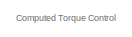
[diagram: root canvas - part 1/4, top left region]
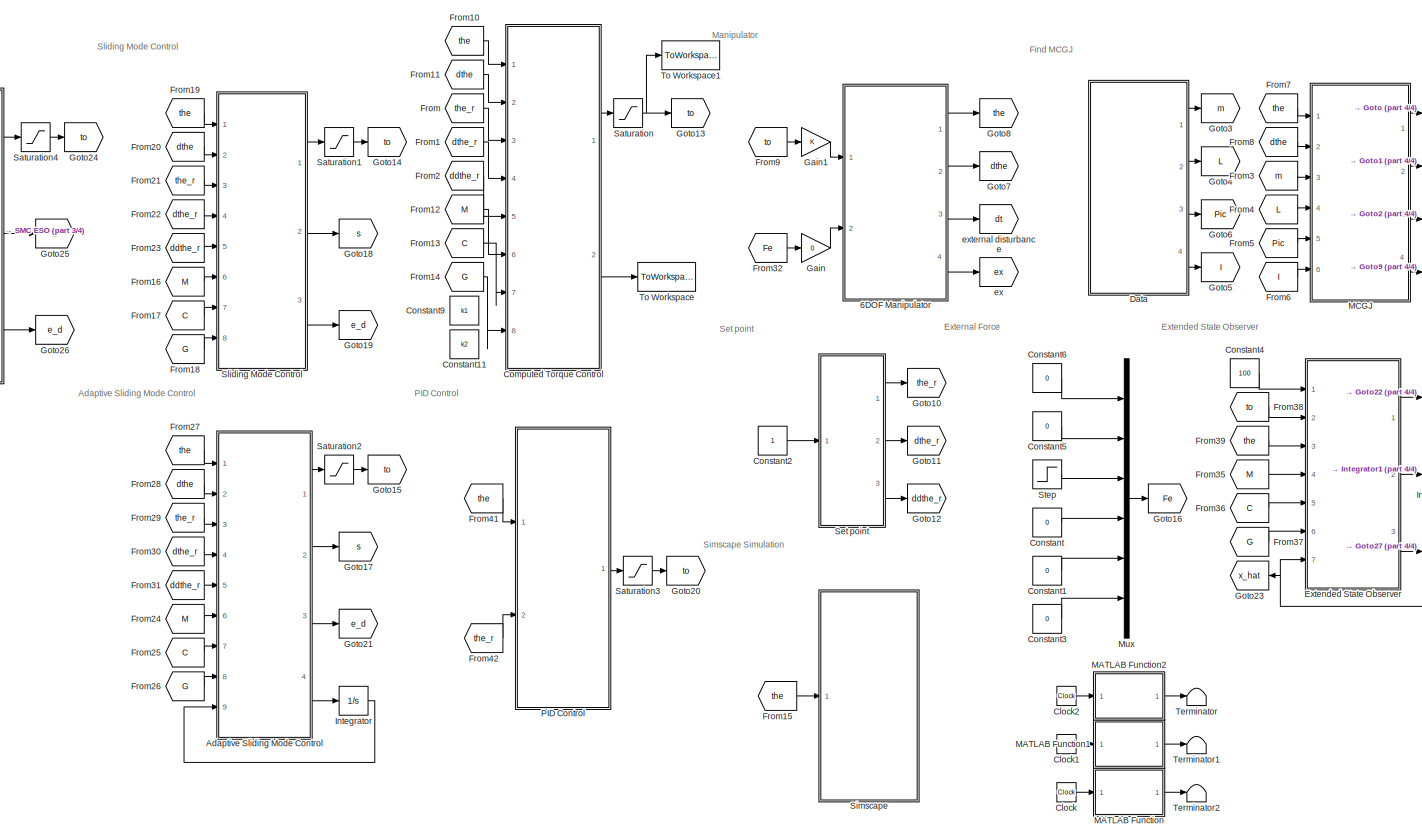
[diagram: root canvas - part 2/4, center side, full height]
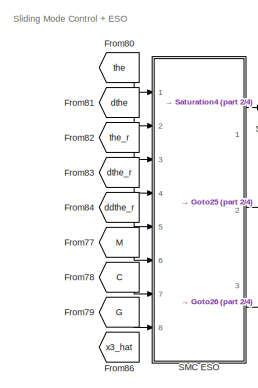
[diagram: root canvas - part 3/4, top left region]
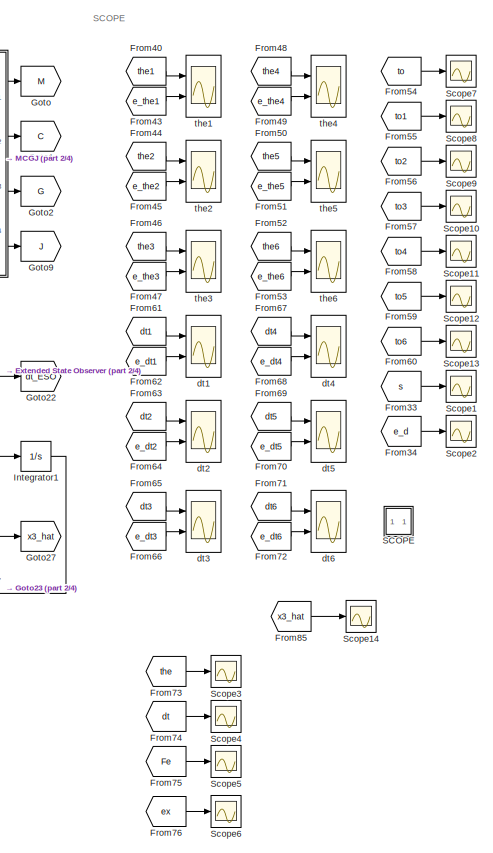
[diagram: root canvas - part 4/4, right side, full height]
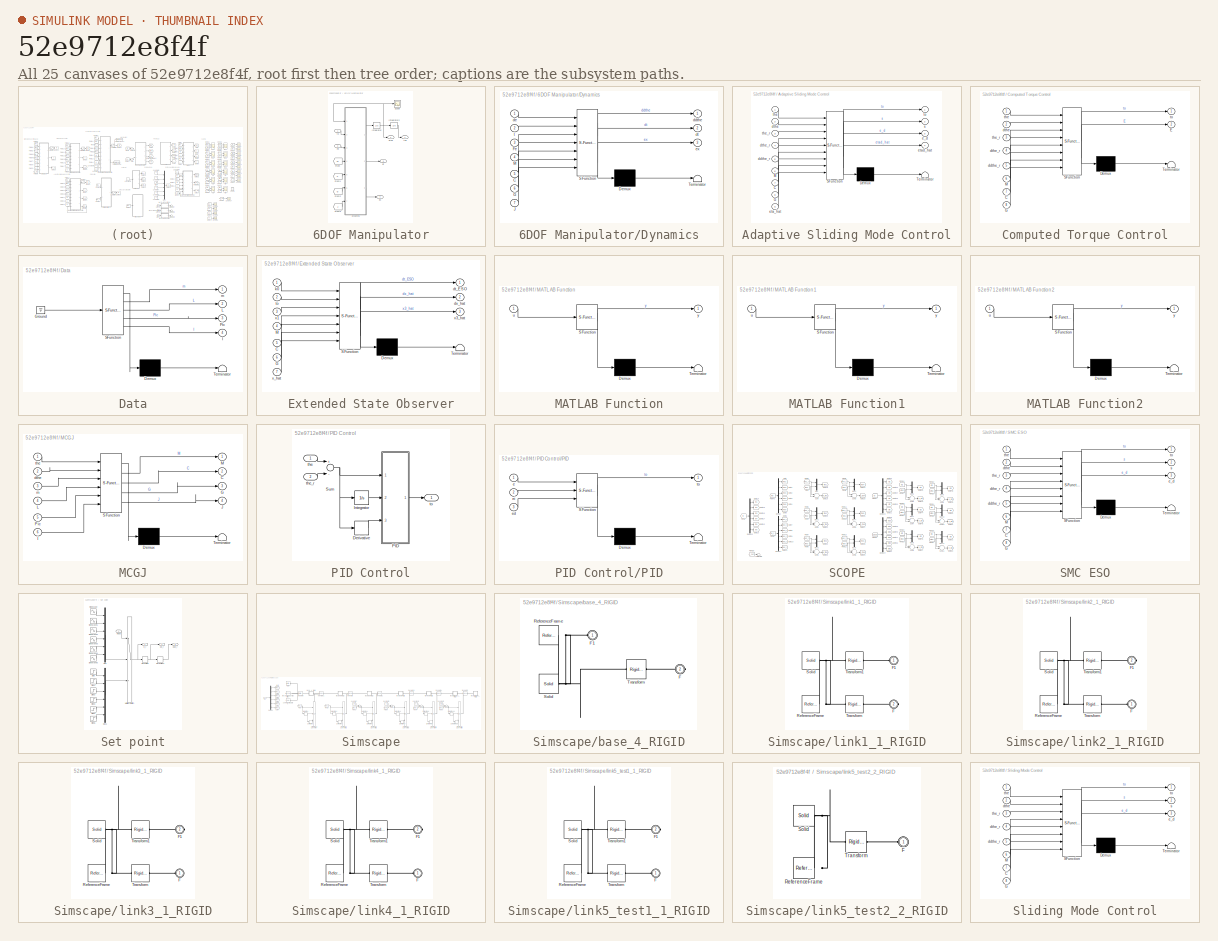
[diagram: thumbnail index - all 25 canvases of the model, root first then tree order]
MODEL slx_52e9712e8f4f
KIND model
CONFIG AbsTol = auto
CONFIG EnableMultiTasking = off
CONFIG FixedStep = 0.01
CONFIG MaxStep = auto
CONFIG MinStep = auto
CONFIG RelTol = 1e-3
CONFIG SampleTimeConstraint = Unconstrained
CONFIG Solver = FixedStepAuto
CONFIG SolverName = FixedStepAuto
CONFIG StartTime = 0.0
CONFIG StopTime = 10
WORKSPACE source: external: MATLAB File  (data not in archive)
BLOCK [SubSystem] 6DOF Manipulator
  Ports = [2, 4]
  RequestExecContextInheritance = off
BLOCK [SubSystem] 6DOF Manipulator/Dynamics
  ErrorFcn = Stateflow.Translate.translate
  PermitHierarchicalResolution = ExplicitOnly
  Ports = [7, 3]
  RequestExecContextInheritance = off
  SFBlockType = MATLAB Function
  TreatAsAtomicUnit = on
BLOCK [Demux] 6DOF Manipulator/Dynamics/ Demux 
  DisplayOption = bar
  Outputs = 1
  Ports = [1, 1]
BLOCK [S-Function] 6DOF Manipulator/Dynamics/ SFunction 
  EnableBusSupport = on
  FunctionName = sf_sfun
  PortCounts = [7 4]
  Ports = [7, 4]
  SFcnIsStateOwnerBlock = off
  SFunctionDeploymentMode = off
  Tag = Stateflow S-Function CONTROL_02 1
BLOCK [Terminator] 6DOF Manipulator/Dynamics/ Terminator 
BLOCK [Inport] 6DOF Manipulator/Dynamics/C
  IconDisplay = Port number
  Port = 5
BLOCK [Inport] 6DOF Manipulator/Dynamics/Fe
  IconDisplay = Port number
  Port = 3
BLOCK [Inport] 6DOF Manipulator/Dynamics/G
  IconDisplay = Port number
  Port = 6
BLOCK [Inport] 6DOF Manipulator/Dynamics/J
  IconDisplay = Port number
  Port = 7
BLOCK [Inport] 6DOF Manipulator/Dynamics/M
  IconDisplay = Port number
  Port = 4
BLOCK [Outport] 6DOF Manipulator/Dynamics/ddthe
  IconDisplay = Port number
BLOCK [Inport] 6DOF Manipulator/Dynamics/de
  IconDisplay = Port number
BLOCK [Outport] 6DOF Manipulator/Dynamics/dt
  IconDisplay = Port number
  Port = 2
BLOCK [Outport] 6DOF Manipulator/Dynamics/ex
  IconDisplay = Port number
  Port = 3
BLOCK [Inport] 6DOF Manipulator/Dynamics/t
  IconDisplay = Port number
  Port = 2
BLOCK [Inport] 6DOF Manipulator/Fe
  IconDisplay = Port number
  Port = 2
BLOCK [From] 6DOF Manipulator/From
  GotoTag = M
  TagVisibility = global
BLOCK [From] 6DOF Manipulator/From1
  GotoTag = C
  TagVisibility = global
BLOCK [From] 6DOF Manipulator/From2
  GotoTag = G
  TagVisibility = global
BLOCK [From] 6DOF Manipulator/From9
  GotoTag = J
  TagVisibility = global
BLOCK [Integrator] 6DOF Manipulator/Integrator
  InitialCondition = [0;0;0;0;0;0]
  LowerSaturationLimit = -pi
  Ports = [1, 1]
  UpperSaturationLimit = pi
BLOCK [Integrator] 6DOF Manipulator/Integrator2
  InitialCondition = [0;0;0;0;0;0]
  LowerSaturationLimit = -[170;100;119;190;120;360]*pi/180
  Ports = [1, 1]
  UpperSaturationLimit = [170;135;166;190;120;360]*pi/180
BLOCK [Scope] 6DOF Manipulator/Scope
  Floating = off
  NumInputPorts = 1
  Ports = [1]
  ScopeSpecificationString = Simulink.scopes.TimeScopeBlockCfg('CurrentConfiguration', extmgr.ConfigurationSet(extmgr.Configuration('Core','General UI',true),extmgr.Configuration('Core','Source UI',true),extmgr.Configuration('Sources','WiredSimulink',true,'DataLoggingVariableName','ScopeData5'),extmgr.Configuration('Visuals','Time Domain',true,'SerializedDisplays',{struct('MinYLimReal','-0.8425','MaxYLimReal','1.07823','YLabe...<+1469ch>
BLOCK [Outport] 6DOF Manipulator/dt
  IconDisplay = Port number
  Port = 3
BLOCK [Outport] 6DOF Manipulator/dthe
  IconDisplay = Port number
  Port = 2
BLOCK [Outport] 6DOF Manipulator/ex
  IconDisplay = Port number
  Port = 4
BLOCK [Outport] 6DOF Manipulator/the
  IconDisplay = Port number
BLOCK [Inport] 6DOF Manipulator/to
  IconDisplay = Port number
BLOCK [SubSystem] Adaptive Sliding Mode Control
  Commented = on
  ErrorFcn = Stateflow.Translate.translate
  PermitHierarchicalResolution = ExplicitOnly
  Ports = [9, 4]
  RequestExecContextInheritance = off
  SFBlockType = MATLAB Function
  TreatAsAtomicUnit = on
BLOCK [Demux] Adaptive Sliding Mode Control/ Demux 
  Outputs = 1
  Ports = [1, 1]
BLOCK [S-Function] Adaptive Sliding Mode Control/ SFunction 
  EnableBusSupport = on
  FunctionName = sf_sfun
  PortCounts = [9 5]
  Ports = [9, 5]
  SFcnIsStateOwnerBlock = off
  SFunctionDeploymentMode = off
  Tag = Stateflow S-Function CONTROL_02 9
BLOCK [Terminator] Adaptive Sliding Mode Control/ Terminator 
BLOCK [Inport] Adaptive Sliding Mode Control/C
  IconDisplay = Port number
  Port = 7
BLOCK [Inport] Adaptive Sliding Mode Control/G
  IconDisplay = Port number
  Port = 8
BLOCK [Inport] Adaptive Sliding Mode Control/M
  IconDisplay = Port number
  Port = 6
BLOCK [Inport] Adaptive Sliding Mode Control/ddthe_r
  IconDisplay = Port number
  Port = 5
BLOCK [Inport] Adaptive Sliding Mode Control/dthe
  IconDisplay = Port number
  Port = 2
BLOCK [Inport] Adaptive Sliding Mode Control/dthe_r
  IconDisplay = Port number
  Port = 4
BLOCK [Outport] Adaptive Sliding Mode Control/e_d
  IconDisplay = Port number
  Port = 3
BLOCK [Inport] Adaptive Sliding Mode Control/eta_hat
  IconDisplay = Port number
  Port = 9
BLOCK [Outport] Adaptive Sliding Mode Control/etad_hat
  IconDisplay = Port number
  Port = 4
BLOCK [Outport] Adaptive Sliding Mode Control/s
  IconDisplay = Port number
  Port = 2
BLOCK [Inport] Adaptive Sliding Mode Control/the
  IconDisplay = Port number
BLOCK [Inport] Adaptive Sliding Mode Control/the_r
  IconDisplay = Port number
  Port = 3
BLOCK [Outport] Adaptive Sliding Mode Control/to
  IconDisplay = Port number
BLOCK [Clock] Clock
  Commented = on
BLOCK [Clock] Clock1
  Commented = on
BLOCK [Clock] Clock2
  Commented = on
BLOCK [SubSystem] Computed Torque Control
  ErrorFcn = Stateflow.Translate.translate
  PermitHierarchicalResolution = ExplicitOnly
  Ports = [8, 2]
  RequestExecContextInheritance = off
  SFBlockType = MATLAB Function
  TreatAsAtomicUnit = on
BLOCK [Demux] Computed Torque Control/ Demux 
  DisplayOption = bar
  Outputs = 1
  Ports = [1, 1]
BLOCK [S-Function] Computed Torque Control/ SFunction 
  EnableBusSupport = on
  FunctionName = sf_sfun
  PortCounts = [8 3]
  Ports = [8, 3]
  SFcnIsStateOwnerBlock = off
  SFunctionDeploymentMode = off
  Tag = Stateflow S-Function CONTROL_02 4
BLOCK [Terminator] Computed Torque Control/ Terminator 
BLOCK [Inport] Computed Torque Control/C
  IconDisplay = Port number
  Port = 7
BLOCK [Outport] Computed Torque Control/E
  IconDisplay = Port number
  Port = 2
BLOCK [Inport] Computed Torque Control/G
  IconDisplay = Port number
  Port = 8
BLOCK [Inport] Computed Torque Control/M
  IconDisplay = Port number
  Port = 6
BLOCK [Inport] Computed Torque Control/ddthe_r
  IconDisplay = Port number
  Port = 5
BLOCK [Inport] Computed Torque Control/dthe
  IconDisplay = Port number
  Port = 2
BLOCK [Inport] Computed Torque Control/dthe_r
  IconDisplay = Port number
  Port = 4
BLOCK [Inport] Computed Torque Control/the
  IconDisplay = Port number
BLOCK [Inport] Computed Torque Control/the_r
  IconDisplay = Port number
  Port = 3
BLOCK [Outport] Computed Torque Control/to
  IconDisplay = Port number
BLOCK [Constant] Constant
  Value = 0
BLOCK [Constant] Constant1
  Value = 0
BLOCK [Constant] Constant11
  Commented = on
  Value = k2
BLOCK [Constant] Constant2
BLOCK [Constant] Constant3
  Value = 0
BLOCK [Constant] Constant4
  Value = 100
BLOCK [Constant] Constant5
  Value = 0
BLOCK [Constant] Constant6
  Value = 0
BLOCK [Constant] Constant9
  Commented = on
  Value = k1
BLOCK [SubSystem] Data
  ErrorFcn = Stateflow.Translate.translate
  PermitHierarchicalResolution = ExplicitOnly
  Ports = [0, 4]
  RequestExecContextInheritance = off
  SFBlockType = MATLAB Function
  TreatAsAtomicUnit = on
BLOCK [Demux] Data/ Demux 
  DisplayOption = bar
  Outputs = 1
  Ports = [1, 1]
BLOCK [Ground] Data/ Ground 
BLOCK [S-Function] Data/ SFunction 
  EnableBusSupport = on
  FunctionName = sf_sfun
  PortCounts = [1 5]
  Ports = [1, 5]
  SFcnIsStateOwnerBlock = off
  SFunctionDeploymentMode = off
  Tag = Stateflow S-Function CONTROL_02 3
BLOCK [Terminator] Data/ Terminator 
BLOCK [Outport] Data/I
  IconDisplay = Port number
  Port = 4
BLOCK [Outport] Data/L
  IconDisplay = Port number
  Port = 2
BLOCK [Outport] Data/Pic
  IconDisplay = Port number
  Port = 3
BLOCK [Outport] Data/m
  IconDisplay = Port number
BLOCK [SubSystem] Extended State Observer
  ErrorFcn = Stateflow.Translate.translate
  PermitHierarchicalResolution = ExplicitOnly
  Ports = [7, 3]
  RequestExecContextInheritance = off
  SFBlockType = MATLAB Function
  TreatAsAtomicUnit = on
BLOCK [Demux] Extended State Observer/ Demux 
  Outputs = 1
  Ports = [1, 1]
BLOCK [S-Function] Extended State Observer/ SFunction 
  EnableBusSupport = on
  FunctionName = sf_sfun
  PortCounts = [7 4]
  Ports = [7, 4]
  SFcnIsStateOwnerBlock = off
  SFunctionDeploymentMode = off
  Tag = Stateflow S-Function CONTROL_02 11
BLOCK [Terminator] Extended State Observer/ Terminator 
BLOCK [Inport] Extended State Observer/C
  IconDisplay = Port number
  Port = 5
BLOCK [Inport] Extended State Observer/G
  IconDisplay = Port number
  Port = 6
BLOCK [Inport] Extended State Observer/M
  IconDisplay = Port number
  Port = 4
BLOCK [Outport] Extended State Observer/dt_ESO
  IconDisplay = Port number
BLOCK [Outport] Extended State Observer/dx_hat
  IconDisplay = Port number
  Port = 2
BLOCK [Inport] Extended State Observer/k0
  IconDisplay = Port number
BLOCK [Inport] Extended State Observer/to
  IconDisplay = Port number
  Port = 2
BLOCK [Inport] Extended State Observer/x1
  IconDisplay = Port number
  Port = 3
BLOCK [Outport] Extended State Observer/x3_hat
  IconDisplay = Port number
  Port = 3
BLOCK [Inport] Extended State Observer/x_hat
  IconDisplay = Port number
  Port = 7
BLOCK [From] From
  GotoTag = the_r
  TagVisibility = global
BLOCK [From] From1
  GotoTag = dthe_r
BLOCK [From] From10
  GotoTag = the
  TagVisibility = global
BLOCK [From] From11
  GotoTag = dthe
BLOCK [From] From12
  GotoTag = M
  TagVisibility = global
BLOCK [From] From13
  GotoTag = C
  TagVisibility = global
BLOCK [From] From14
  GotoTag = G
  TagVisibility = global
BLOCK [From] From15
  Commented = on
  GotoTag = the
  TagVisibility = global
BLOCK [From] From16
  Commented = on
  GotoTag = M
  TagVisibility = global
BLOCK [From] From17
  Commented = on
  GotoTag = C
  TagVisibility = global
BLOCK [From] From18
  Commented = on
  GotoTag = G
  TagVisibility = global
BLOCK [From] From19
  Commented = on
  GotoTag = the
  TagVisibility = global
BLOCK [From] From2
  GotoTag = ddthe_r
BLOCK [From] From20
  Commented = on
  GotoTag = dthe
BLOCK [From] From21
  Commented = on
  GotoTag = the_r
  TagVisibility = global
BLOCK [From] From22
  Commented = on
  GotoTag = dthe_r
BLOCK [From] From23
  Commented = on
  GotoTag = ddthe_r
BLOCK [From] From24
  Commented = on
  GotoTag = M
  TagVisibility = global
BLOCK [From] From25
  Commented = on
  GotoTag = C
  TagVisibility = global
BLOCK [From] From26
  Commented = on
  GotoTag = G
  TagVisibility = global
BLOCK [From] From27
  Commented = on
  GotoTag = the
  TagVisibility = global
BLOCK [From] From28
  Commented = on
  GotoTag = dthe
BLOCK [From] From29
  Commented = on
  GotoTag = the_r
  TagVisibility = global
BLOCK [From] From3
  GotoTag = m
BLOCK [From] From30
  Commented = on
  GotoTag = dthe_r
BLOCK [From] From31
  Commented = on
  GotoTag = ddthe_r
BLOCK [From] From32
  GotoTag = Fe
BLOCK [From] From33
  GotoTag = s
BLOCK [From] From34
  GotoTag = e_d
BLOCK [From] From35
  GotoTag = M
  TagVisibility = global
BLOCK [From] From36
  GotoTag = C
  TagVisibility = global
BLOCK [From] From37
  GotoTag = G
  TagVisibility = global
BLOCK [From] From38
  GotoTag = to
  TagVisibility = global
BLOCK [From] From39
  GotoTag = the
  TagVisibility = global
BLOCK [From] From4
  GotoTag = L
BLOCK [From] From40
  GotoTag = the1
  TagVisibility = global
BLOCK [From] From41
  Commented = on
  GotoTag = the
BLOCK [From] From42
  Commented = on
  GotoTag = the_r
BLOCK [From] From43
  GotoTag = e_the1
  TagVisibility = global
BLOCK [From] From44
  GotoTag = the2
  TagVisibility = global
BLOCK [From] From45
  GotoTag = e_the2
  TagVisibility = global
BLOCK [From] From46
  GotoTag = the3
  TagVisibility = global
BLOCK [From] From47
  GotoTag = e_the3
  TagVisibility = global
BLOCK [From] From48
  GotoTag = the4
  TagVisibility = global
BLOCK [From] From49
  GotoTag = e_the4
  TagVisibility = global
BLOCK [From] From5
  GotoTag = Pic
BLOCK [From] From50
  GotoTag = the5
  TagVisibility = global
BLOCK [From] From51
  GotoTag = e_the5
  TagVisibility = global
BLOCK [From] From52
  GotoTag = the6
  TagVisibility = global
BLOCK [From] From53
  GotoTag = e_the6
  TagVisibility = global
BLOCK [From] From54
  GotoTag = to
  TagVisibility = global
BLOCK [From] From55
  GotoTag = to1
  TagVisibility = global
BLOCK [From] From56
  GotoTag = to2
  TagVisibility = global
BLOCK [From] From57
  GotoTag = to3
  TagVisibility = global
BLOCK [From] From58
  GotoTag = to4
  TagVisibility = global
BLOCK [From] From59
  GotoTag = to5
  TagVisibility = global
BLOCK [From] From6
  GotoTag = I
BLOCK [From] From60
  GotoTag = to6
  TagVisibility = global
BLOCK [From] From61
  GotoTag = dt1
  TagVisibility = global
BLOCK [From] From62
  GotoTag = e_dt1
  TagVisibility = global
BLOCK [From] From63
  GotoTag = dt2
  TagVisibility = global
BLOCK [From] From64
  GotoTag = e_dt2
  TagVisibility = global
BLOCK [From] From65
  GotoTag = dt3
  TagVisibility = global
BLOCK [From] From66
  GotoTag = e_dt3
  TagVisibility = global
BLOCK [From] From67
  GotoTag = dt4
  TagVisibility = global
BLOCK [From] From68
  GotoTag = e_dt4
  TagVisibility = global
BLOCK [From] From69
  GotoTag = dt5
  TagVisibility = global
BLOCK [From] From7
  GotoTag = the
  TagVisibility = global
BLOCK [From] From70
  GotoTag = e_dt5
  TagVisibility = global
BLOCK [From] From71
  GotoTag = dt6
  TagVisibility = global
BLOCK [From] From72
  GotoTag = e_dt6
  TagVisibility = global
BLOCK [From] From73
  GotoTag = the
  TagVisibility = global
BLOCK [From] From74
  GotoTag = dt
  TagVisibility = global
BLOCK [From] From75
  GotoTag = Fe
BLOCK [From] From76
  GotoTag = ex
  TagVisibility = global
BLOCK [From] From77
  Commented = on
  GotoTag = M
  TagVisibility = global
BLOCK [From] From78
  Commented = on
  GotoTag = C
  TagVisibility = global
BLOCK [From] From79
  Commented = on
  GotoTag = G
  TagVisibility = global
BLOCK [From] From8
  GotoTag = dthe
BLOCK [From] From80
  Commented = on
  GotoTag = the
  TagVisibility = global
BLOCK [From] From81
  Commented = on
  GotoTag = dthe
BLOCK [From] From82
  Commented = on
  GotoTag = the_r
  TagVisibility = global
BLOCK [From] From83
  Commented = on
  GotoTag = dthe_r
BLOCK [From] From84
  Commented = on
  GotoTag = ddthe_r
BLOCK [From] From85
  GotoTag = x3_hat
BLOCK [From] From86
  Commented = on
  GotoTag = x3_hat
BLOCK [From] From9
  GotoTag = to
  TagVisibility = global
BLOCK [Gain] Gain
  Gain = 0
  OutDataTypeStr = Inherit: Inherit via internal rule
  ParamDataTypeStr = Inherit: Inherit via internal rule
  SaturateOnIntegerOverflow = off
BLOCK [Gain] Gain1
  OutDataTypeStr = Inherit: Inherit via internal rule
  ParamDataTypeStr = Inherit: Inherit via internal rule
  SaturateOnIntegerOverflow = off
BLOCK [Goto] Goto
  GotoTag = M
  TagVisibility = global
BLOCK [Goto] Goto1
  GotoTag = C
  TagVisibility = global
BLOCK [Goto] Goto10
  GotoTag = the_r
  TagVisibility = global
BLOCK [Goto] Goto11
  GotoTag = dthe_r
BLOCK [Goto] Goto12
  GotoTag = ddthe_r
BLOCK [Goto] Goto13
  GotoTag = to
  TagVisibility = global
BLOCK [Goto] Goto14
  Commented = on
  GotoTag = to
  TagVisibility = global
BLOCK [Goto] Goto15
  Commented = on
  GotoTag = to
  TagVisibility = global
BLOCK [Goto] Goto16
  GotoTag = Fe
BLOCK [Goto] Goto17
  Commented = on
  GotoTag = s
BLOCK [Goto] Goto18
  Commented = on
  GotoTag = s
BLOCK [Goto] Goto19
  Commented = on
  GotoTag = e_d
BLOCK [Goto] Goto2
  GotoTag = G
  TagVisibility = global
BLOCK [Goto] Goto20
  Commented = on
  GotoTag = to
  TagVisibility = global
BLOCK [Goto] Goto21
  Commented = on
  GotoTag = e_d
BLOCK [Goto] Goto22
  GotoTag = dt_ESO
  TagVisibility = global
BLOCK [Goto] Goto23
  GotoTag = x_hat
  TagVisibility = global
BLOCK [Goto] Goto24
  Commented = on
  GotoTag = to
  TagVisibility = global
BLOCK [Goto] Goto25
  Commented = on
  GotoTag = s
BLOCK [Goto] Goto26
  Commented = on
  GotoTag = e_d
BLOCK [Goto] Goto27
  GotoTag = x3_hat
BLOCK [Goto] Goto3
  GotoTag = m
BLOCK [Goto] Goto4
  GotoTag = L
BLOCK [Goto] Goto5
  GotoTag = I
BLOCK [Goto] Goto6
  GotoTag = Pic
BLOCK [Goto] Goto7
  GotoTag = dthe
BLOCK [Goto] Goto8
  GotoTag = the
  TagVisibility = global
BLOCK [Goto] Goto9
  GotoTag = J
  TagVisibility = global
BLOCK [Integrator] Integrator
  Commented = on
  InitialCondition = zeros(6)
  Ports = [1, 1]
BLOCK [Integrator] Integrator1
  InitialCondition = zeros(18,1)
  Ports = [1, 1]
BLOCK [SubSystem] MATLAB Function
  Commented = on
  ErrorFcn = Stateflow.Translate.translate
  PermitHierarchicalResolution = ExplicitOnly
  Ports = [1, 1]
  RequestExecContextInheritance = off
  SFBlockType = MATLAB Function
  TreatAsAtomicUnit = on
BLOCK [Demux] MATLAB Function/ Demux 
  Outputs = 1
  Ports = [1, 1]
BLOCK [S-Function] MATLAB Function/ SFunction 
  EnableBusSupport = on
  FunctionName = sf_sfun
  PortCounts = [1 2]
  Ports = [1, 2]
  SFcnIsStateOwnerBlock = off
  SFunctionDeploymentMode = off
  Tag = Stateflow S-Function CONTROL_02 5
BLOCK [Terminator] MATLAB Function/ Terminator 
BLOCK [Inport] MATLAB Function/u
  IconDisplay = Port number
BLOCK [Outport] MATLAB Function/y
  IconDisplay = Port number
BLOCK [SubSystem] MATLAB Function1
  Commented = on
  ErrorFcn = Stateflow.Translate.translate
  PermitHierarchicalResolution = ExplicitOnly
  Ports = [1, 1]
  RequestExecContextInheritance = off
  SFBlockType = MATLAB Function
  TreatAsAtomicUnit = on
BLOCK [Demux] MATLAB Function1/ Demux 
  Outputs = 1
  Ports = [1, 1]
BLOCK [S-Function] MATLAB Function1/ SFunction 
  EnableBusSupport = on
  FunctionName = sf_sfun
  PortCounts = [1 2]
  Ports = [1, 2]
  SFcnIsStateOwnerBlock = off
  SFunctionDeploymentMode = off
  Tag = Stateflow S-Function CONTROL_02 6
BLOCK [Terminator] MATLAB Function1/ Terminator 
BLOCK [Inport] MATLAB Function1/u
  IconDisplay = Port number
BLOCK [Outport] MATLAB Function1/y
  IconDisplay = Port number
BLOCK [SubSystem] MATLAB Function2
  Commented = on
  ErrorFcn = Stateflow.Translate.translate
  PermitHierarchicalResolution = ExplicitOnly
  Ports = [1, 1]
  RequestExecContextInheritance = off
  SFBlockType = MATLAB Function
  TreatAsAtomicUnit = on
BLOCK [Demux] MATLAB Function2/ Demux 
  Outputs = 1
  Ports = [1, 1]
BLOCK [S-Function] MATLAB Function2/ SFunction 
  EnableBusSupport = on
  FunctionName = sf_sfun
  PortCounts = [1 2]
  Ports = [1, 2]
  SFcnIsStateOwnerBlock = off
  SFunctionDeploymentMode = off
  Tag = Stateflow S-Function CONTROL_02 7
BLOCK [Terminator] MATLAB Function2/ Terminator 
BLOCK [Inport] MATLAB Function2/u
  IconDisplay = Port number
BLOCK [Outport] MATLAB Function2/y
  IconDisplay = Port number
BLOCK [SubSystem] MCGJ
  ErrorFcn = Stateflow.Translate.translate
  PermitHierarchicalResolution = ExplicitOnly
  Ports = [6, 4]
  RequestExecContextInheritance = off
  SFBlockType = MATLAB Function
  TreatAsAtomicUnit = on
BLOCK [Demux] MCGJ/ Demux 
  DisplayOption = bar
  Outputs = 1
  Ports = [1, 1]
BLOCK [S-Function] MCGJ/ SFunction 
  EnableBusSupport = on
  FunctionName = sf_sfun
  PortCounts = [6 5]
  Ports = [6, 5]
  SFcnIsStateOwnerBlock = off
  SFunctionDeploymentMode = off
  Tag = Stateflow S-Function CONTROL_02 2
BLOCK [Terminator] MCGJ/ Terminator 
BLOCK [Outport] MCGJ/C
  IconDisplay = Port number
  Port = 2
BLOCK [Outport] MCGJ/G
  IconDisplay = Port number
  Port = 3
BLOCK [Inport] MCGJ/I
  IconDisplay = Port number
  Port = 6
BLOCK [Outport] MCGJ/J
  IconDisplay = Port number
  Port = 4
BLOCK [Inport] MCGJ/L
  IconDisplay = Port number
  Port = 4
BLOCK [Outport] MCGJ/M
  IconDisplay = Port number
  VectorParamsAs1DForOutWhenUnconnected = on
BLOCK [Inport] MCGJ/Pic
  IconDisplay = Port number
  Port = 5
BLOCK [Inport] MCGJ/dthe
  IconDisplay = Port number
  Port = 2
BLOCK [Inport] MCGJ/m
  IconDisplay = Port number
  Port = 3
BLOCK [Inport] MCGJ/the
  IconDisplay = Port number
BLOCK [Mux] Mux
  DisplayOption = bar
  Inputs = 6
  Ports = [6, 1]
BLOCK [SubSystem] PID Control
  Commented = on
  Ports = [2, 1]
  RequestExecContextInheritance = off
BLOCK [Derivative] PID Control/Derivative
BLOCK [Integrator] PID Control/Integrator
  Ports = [1, 1]
BLOCK [SubSystem] PID Control/PID
  ErrorFcn = Stateflow.Translate.translate
  PermitHierarchicalResolution = ExplicitOnly
  Ports = [3, 1]
  RequestExecContextInheritance = off
  SFBlockType = MATLAB Function
  TreatAsAtomicUnit = on
BLOCK [Demux] PID Control/PID/ Demux 
  Outputs = 1
  Ports = [1, 1]
BLOCK [S-Function] PID Control/PID/ SFunction 
  EnableBusSupport = on
  FunctionName = sf_sfun
  PortCounts = [3 2]
  Ports = [3, 2]
  SFcnIsStateOwnerBlock = off
  SFunctionDeploymentMode = off
  Tag = Stateflow S-Function CONTROL_02 10
BLOCK [Terminator] PID Control/PID/ Terminator 
BLOCK [Inport] PID Control/PID/e
  IconDisplay = Port number
BLOCK [Inport] PID Control/PID/ed
  IconDisplay = Port number
  Port = 3
BLOCK [Inport] PID Control/PID/ei
  IconDisplay = Port number
  Port = 2
BLOCK [Outport] PID Control/PID/to
  IconDisplay = Port number
BLOCK [Sum] PID Control/Sum
  InputSameDT = off
  Inputs = +-
  OutDataTypeStr = Inherit: Inherit via internal rule
  Ports = [2, 1]
  SaturateOnIntegerOverflow = off
BLOCK [Inport] PID Control/the
  IconDisplay = Port number
BLOCK [Inport] PID Control/the_r
  IconDisplay = Port number
  Port = 2
BLOCK [Outport] PID Control/to
  IconDisplay = Port number
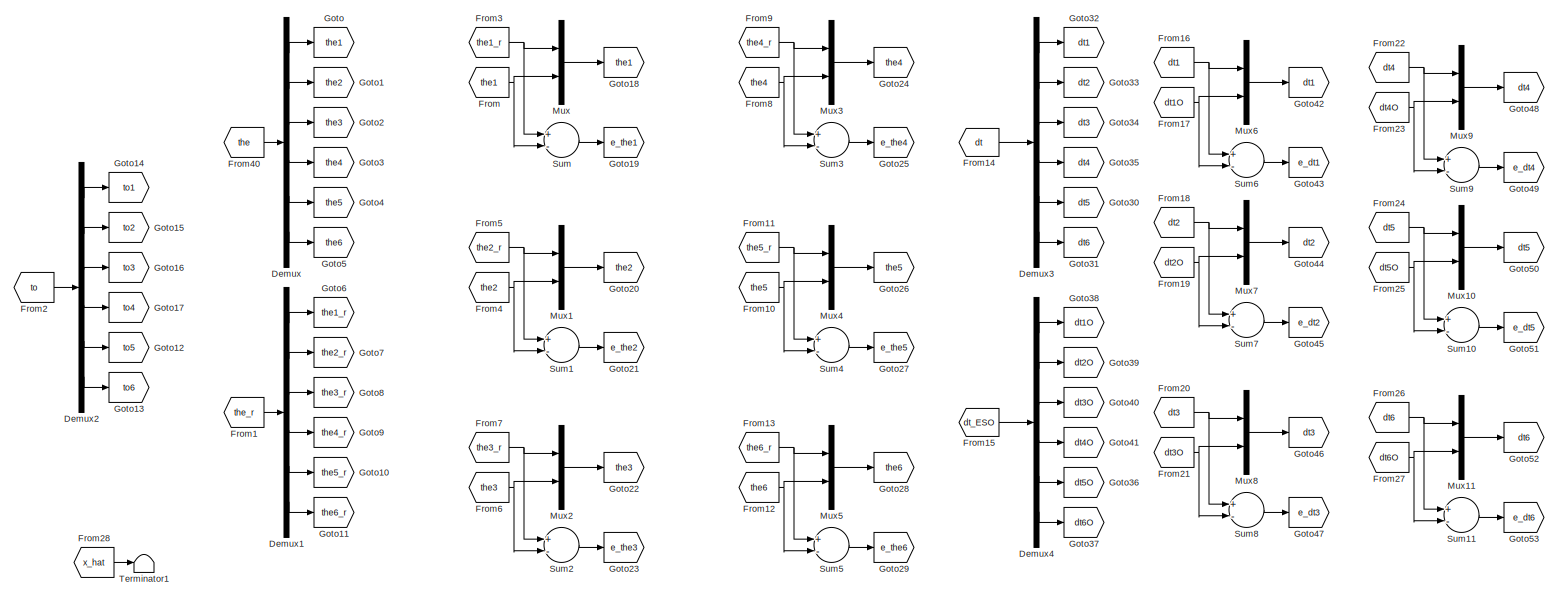
[diagram: SCOPE - part 1/1, most of the canvas]
BLOCK [SubSystem] SCOPE
  Ports = []
  RequestExecContextInheritance = off
BLOCK [Demux] SCOPE/Demux
  DisplayOption = bar
  Outputs = 6
  Ports = [1, 6]
BLOCK [Demux] SCOPE/Demux1
  DisplayOption = bar
  Outputs = 6
  Ports = [1, 6]
BLOCK [Demux] SCOPE/Demux2
  DisplayOption = bar
  Outputs = 6
  Ports = [1, 6]
BLOCK [Demux] SCOPE/Demux3
  DisplayOption = bar
  Outputs = 6
  Ports = [1, 6]
BLOCK [Demux] SCOPE/Demux4
  DisplayOption = bar
  Outputs = 6
  Ports = [1, 6]
BLOCK [From] SCOPE/From
  GotoTag = the1
BLOCK [From] SCOPE/From1
  GotoTag = the_r
  TagVisibility = global
BLOCK [From] SCOPE/From10
  GotoTag = the5
BLOCK [From] SCOPE/From11
  GotoTag = the5_r
BLOCK [From] SCOPE/From12
  GotoTag = the6
BLOCK [From] SCOPE/From13
  GotoTag = the6_r
BLOCK [From] SCOPE/From14
  GotoTag = dt
  TagVisibility = global
BLOCK [From] SCOPE/From15
  GotoTag = dt_ESO
  TagVisibility = global
BLOCK [From] SCOPE/From16
  GotoTag = dt1
BLOCK [From] SCOPE/From17
  GotoTag = dt1O
BLOCK [From] SCOPE/From18
  GotoTag = dt2
BLOCK [From] SCOPE/From19
  GotoTag = dt2O
BLOCK [From] SCOPE/From2
  GotoTag = to
  TagVisibility = global
BLOCK [From] SCOPE/From20
  GotoTag = dt3
BLOCK [From] SCOPE/From21
  GotoTag = dt3O
BLOCK [From] SCOPE/From22
  GotoTag = dt4
BLOCK [From] SCOPE/From23
  GotoTag = dt4O
BLOCK [From] SCOPE/From24
  GotoTag = dt5
BLOCK [From] SCOPE/From25
  GotoTag = dt5O
BLOCK [From] SCOPE/From26
  GotoTag = dt6
BLOCK [From] SCOPE/From27
  GotoTag = dt6O
BLOCK [From] SCOPE/From28
  GotoTag = x_hat
  TagVisibility = global
BLOCK [From] SCOPE/From3
  GotoTag = the1_r
BLOCK [From] SCOPE/From4
  GotoTag = the2
BLOCK [From] SCOPE/From40
  GotoTag = the
  TagVisibility = global
BLOCK [From] SCOPE/From5
  GotoTag = the2_r
BLOCK [From] SCOPE/From6
  GotoTag = the3
BLOCK [From] SCOPE/From7
  GotoTag = the3_r
BLOCK [From] SCOPE/From8
  GotoTag = the4
BLOCK [From] SCOPE/From9
  GotoTag = the4_r
BLOCK [Goto] SCOPE/Goto
  GotoTag = the1
BLOCK [Goto] SCOPE/Goto1
  GotoTag = the2
BLOCK [Goto] SCOPE/Goto10
  GotoTag = the5_r
BLOCK [Goto] SCOPE/Goto11
  GotoTag = the6_r
BLOCK [Goto] SCOPE/Goto12
  GotoTag = to5
  TagVisibility = global
BLOCK [Goto] SCOPE/Goto13
  GotoTag = to6
  TagVisibility = global
BLOCK [Goto] SCOPE/Goto14
  GotoTag = to1
  TagVisibility = global
BLOCK [Goto] SCOPE/Goto15
  GotoTag = to2
  TagVisibility = global
BLOCK [Goto] SCOPE/Goto16
  GotoTag = to3
  TagVisibility = global
BLOCK [Goto] SCOPE/Goto17
  GotoTag = to4
  TagVisibility = global
BLOCK [Goto] SCOPE/Goto18
  GotoTag = the1
  TagVisibility = global
BLOCK [Goto] SCOPE/Goto19
  GotoTag = e_the1
  TagVisibility = global
BLOCK [Goto] SCOPE/Goto2
  GotoTag = the3
BLOCK [Goto] SCOPE/Goto20
  GotoTag = the2
  TagVisibility = global
BLOCK [Goto] SCOPE/Goto21
  GotoTag = e_the2
  TagVisibility = global
BLOCK [Goto] SCOPE/Goto22
  GotoTag = the3
  TagVisibility = global
BLOCK [Goto] SCOPE/Goto23
  GotoTag = e_the3
  TagVisibility = global
BLOCK [Goto] SCOPE/Goto24
  GotoTag = the4
  TagVisibility = global
BLOCK [Goto] SCOPE/Goto25
  GotoTag = e_the4
  TagVisibility = global
BLOCK [Goto] SCOPE/Goto26
  GotoTag = the5
  TagVisibility = global
BLOCK [Goto] SCOPE/Goto27
  GotoTag = e_the5
  TagVisibility = global
BLOCK [Goto] SCOPE/Goto28
  GotoTag = the6
  TagVisibility = global
BLOCK [Goto] SCOPE/Goto29
  GotoTag = e_the6
  TagVisibility = global
BLOCK [Goto] SCOPE/Goto3
  GotoTag = the4
BLOCK [Goto] SCOPE/Goto30
  GotoTag = dt5
BLOCK [Goto] SCOPE/Goto31
  GotoTag = dt6
BLOCK [Goto] SCOPE/Goto32
  GotoTag = dt1
BLOCK [Goto] SCOPE/Goto33
  GotoTag = dt2
BLOCK [Goto] SCOPE/Goto34
  GotoTag = dt3
BLOCK [Goto] SCOPE/Goto35
  GotoTag = dt4
BLOCK [Goto] SCOPE/Goto36
  GotoTag = dt5O
BLOCK [Goto] SCOPE/Goto37
  GotoTag = dt6O
BLOCK [Goto] SCOPE/Goto38
  GotoTag = dt1O
BLOCK [Goto] SCOPE/Goto39
  GotoTag = dt2O
BLOCK [Goto] SCOPE/Goto4
  GotoTag = the5
BLOCK [Goto] SCOPE/Goto40
  GotoTag = dt3O
BLOCK [Goto] SCOPE/Goto41
  GotoTag = dt4O
BLOCK [Goto] SCOPE/Goto42
  GotoTag = dt1
  TagVisibility = global
BLOCK [Goto] SCOPE/Goto43
  GotoTag = e_dt1
  TagVisibility = global
BLOCK [Goto] SCOPE/Goto44
  GotoTag = dt2
  TagVisibility = global
BLOCK [Goto] SCOPE/Goto45
  GotoTag = e_dt2
  TagVisibility = global
BLOCK [Goto] SCOPE/Goto46
  GotoTag = dt3
  TagVisibility = global
BLOCK [Goto] SCOPE/Goto47
  GotoTag = e_dt3
  TagVisibility = global
BLOCK [Goto] SCOPE/Goto48
  GotoTag = dt4
  TagVisibility = global
BLOCK [Goto] SCOPE/Goto49
  GotoTag = e_dt4
  TagVisibility = global
BLOCK [Goto] SCOPE/Goto5
  GotoTag = the6
BLOCK [Goto] SCOPE/Goto50
  GotoTag = dt5
  TagVisibility = global
BLOCK [Goto] SCOPE/Goto51
  GotoTag = e_dt5
  TagVisibility = global
BLOCK [Goto] SCOPE/Goto52
  GotoTag = dt6
  TagVisibility = global
BLOCK [Goto] SCOPE/Goto53
  GotoTag = e_dt6
  TagVisibility = global
BLOCK [Goto] SCOPE/Goto6
  GotoTag = the1_r
BLOCK [Goto] SCOPE/Goto7
  GotoTag = the2_r
BLOCK [Goto] SCOPE/Goto8
  GotoTag = the3_r
BLOCK [Goto] SCOPE/Goto9
  GotoTag = the4_r
BLOCK [Mux] SCOPE/Mux
  DisplayOption = bar
  Inputs = 2
  Ports = [2, 1]
BLOCK [Mux] SCOPE/Mux1
  DisplayOption = bar
  Inputs = 2
  Ports = [2, 1]
BLOCK [Mux] SCOPE/Mux10
  DisplayOption = bar
  Inputs = 2
  Ports = [2, 1]
BLOCK [Mux] SCOPE/Mux11
  DisplayOption = bar
  Inputs = 2
  Ports = [2, 1]
BLOCK [Mux] SCOPE/Mux2
  DisplayOption = bar
  Inputs = 2
  Ports = [2, 1]
BLOCK [Mux] SCOPE/Mux3
  DisplayOption = bar
  Inputs = 2
  Ports = [2, 1]
BLOCK [Mux] SCOPE/Mux4
  DisplayOption = bar
  Inputs = 2
  Ports = [2, 1]
BLOCK [Mux] SCOPE/Mux5
  DisplayOption = bar
  Inputs = 2
  Ports = [2, 1]
BLOCK [Mux] SCOPE/Mux6
  DisplayOption = bar
  Inputs = 2
  Ports = [2, 1]
BLOCK [Mux] SCOPE/Mux7
  DisplayOption = bar
  Inputs = 2
  Ports = [2, 1]
BLOCK [Mux] SCOPE/Mux8
  DisplayOption = bar
  Inputs = 2
  Ports = [2, 1]
BLOCK [Mux] SCOPE/Mux9
  DisplayOption = bar
  Inputs = 2
  Ports = [2, 1]
BLOCK [Sum] SCOPE/Sum
  InputSameDT = off
  Inputs = +-
  OutDataTypeStr = Inherit: Inherit via internal rule
  Ports = [2, 1]
  SaturateOnIntegerOverflow = off
BLOCK [Sum] SCOPE/Sum1
  InputSameDT = off
  Inputs = +-
  OutDataTypeStr = Inherit: Inherit via internal rule
  Ports = [2, 1]
  SaturateOnIntegerOverflow = off
BLOCK [Sum] SCOPE/Sum10
  InputSameDT = off
  Inputs = +-
  OutDataTypeStr = Inherit: Inherit via internal rule
  Ports = [2, 1]
  SaturateOnIntegerOverflow = off
BLOCK [Sum] SCOPE/Sum11
  InputSameDT = off
  Inputs = +-
  OutDataTypeStr = Inherit: Inherit via internal rule
  Ports = [2, 1]
  SaturateOnIntegerOverflow = off
BLOCK [Sum] SCOPE/Sum2
  InputSameDT = off
  Inputs = +-
  OutDataTypeStr = Inherit: Inherit via internal rule
  Ports = [2, 1]
  SaturateOnIntegerOverflow = off
BLOCK [Sum] SCOPE/Sum3
  InputSameDT = off
  Inputs = +-
  OutDataTypeStr = Inherit: Inherit via internal rule
  Ports = [2, 1]
  SaturateOnIntegerOverflow = off
BLOCK [Sum] SCOPE/Sum4
  InputSameDT = off
  Inputs = +-
  OutDataTypeStr = Inherit: Inherit via internal rule
  Ports = [2, 1]
  SaturateOnIntegerOverflow = off
BLOCK [Sum] SCOPE/Sum5
  InputSameDT = off
  Inputs = +-
  OutDataTypeStr = Inherit: Inherit via internal rule
  Ports = [2, 1]
  SaturateOnIntegerOverflow = off
BLOCK [Sum] SCOPE/Sum6
  InputSameDT = off
  Inputs = +-
  OutDataTypeStr = Inherit: Inherit via internal rule
  Ports = [2, 1]
  SaturateOnIntegerOverflow = off
BLOCK [Sum] SCOPE/Sum7
  InputSameDT = off
  Inputs = +-
  OutDataTypeStr = Inherit: Inherit via internal rule
  Ports = [2, 1]
  SaturateOnIntegerOverflow = off
BLOCK [Sum] SCOPE/Sum8
  InputSameDT = off
  Inputs = +-
  OutDataTypeStr = Inherit: Inherit via internal rule
  Ports = [2, 1]
  SaturateOnIntegerOverflow = off
BLOCK [Sum] SCOPE/Sum9
  InputSameDT = off
  Inputs = +-
  OutDataTypeStr = Inherit: Inherit via internal rule
  Ports = [2, 1]
  SaturateOnIntegerOverflow = off
BLOCK [Terminator] SCOPE/Terminator1
BLOCK [SubSystem] SMC ESO
  Commented = on
  ErrorFcn = Stateflow.Translate.translate
  PermitHierarchicalResolution = ExplicitOnly
  Ports = [8, 3]
  RequestExecContextInheritance = off
  SFBlockType = MATLAB Function
  TreatAsAtomicUnit = on
BLOCK [Demux] SMC ESO/ Demux 
  Outputs = 1
  Ports = [1, 1]
BLOCK [S-Function] SMC ESO/ SFunction 
  EnableBusSupport = on
  FunctionName = sf_sfun
  PortCounts = [8 4]
  Ports = [8, 4]
  SFcnIsStateOwnerBlock = off
  SFunctionDeploymentMode = off
  Tag = Stateflow S-Function CONTROL_02 12
BLOCK [Terminator] SMC ESO/ Terminator 
BLOCK [Inport] SMC ESO/C
  IconDisplay = Port number
  Port = 7
BLOCK [Inport] SMC ESO/G
  IconDisplay = Port number
  Port = 8
BLOCK [Inport] SMC ESO/M
  IconDisplay = Port number
  Port = 6
BLOCK [Inport] SMC ESO/ddthe_r
  IconDisplay = Port number
  Port = 5
BLOCK [Inport] SMC ESO/dthe
  IconDisplay = Port number
  Port = 2
BLOCK [Inport] SMC ESO/dthe_r
  IconDisplay = Port number
  Port = 4
BLOCK [Outport] SMC ESO/e_d
  IconDisplay = Port number
  Port = 3
BLOCK [Outport] SMC ESO/s
  IconDisplay = Port number
  Port = 2
BLOCK [Inport] SMC ESO/the
  IconDisplay = Port number
BLOCK [Inport] SMC ESO/the_r
  IconDisplay = Port number
  Port = 3
BLOCK [Outport] SMC ESO/to
  IconDisplay = Port number
BLOCK [Saturate] Saturation
  InputPortMap = u0
  LowerLimit = -500
  Ports = [1, 1]
  UpperLimit = 500
BLOCK [Saturate] Saturation1
  Commented = on
  InputPortMap = u0
  LowerLimit = -500
  Ports = [1, 1]
  UpperLimit = 500
BLOCK [Saturate] Saturation2
  Commented = on
  InputPortMap = u0
  LowerLimit = -400
  Ports = [1, 1]
  UpperLimit = 400
BLOCK [Saturate] Saturation3
  Commented = on
  InputPortMap = u0
  LowerLimit = -500
  Ports = [1, 1]
  UpperLimit = 500
BLOCK [Saturate] Saturation4
  Commented = on
  InputPortMap = u0
  LowerLimit = -500
  Ports = [1, 1]
  UpperLimit = 500
BLOCK [Scope] Scope1
  Floating = off
  NumInputPorts = 1
  Ports = [1]
  ScopeSpecificationString = Simulink.scopes.TimeScopeBlockCfg('CurrentConfiguration', extmgr.ConfigurationSet(extmgr.Configuration('Core','General UI',true,'FigureColor',[1 1 1]),extmgr.Configuration('Core','Source UI',true),extmgr.Configuration('Sources','WiredSimulink',true),extmgr.Configuration('Visuals','Time Domain',true,'SerializedDisplays',{struct('MinYLimReal','-1.00000','MaxYLimReal','1.00000','YLabelReal','','MinYL...<+1942ch>
BLOCK [Scope] Scope10
  Floating = off
  NumInputPorts = 1
  Ports = [1]
  ScopeSpecificationString = Simulink.scopes.TimeScopeBlockCfg('CurrentConfiguration', extmgr.ConfigurationSet(extmgr.Configuration('Core','General UI',true,'FigureColor',[1 1 1]),extmgr.Configuration('Core','Source UI',true),extmgr.Configuration('Sources','WiredSimulink',true,'DataLoggingVariableName','ScopeData16'),extmgr.Configuration('Visuals','Time Domain',true,'SerializedDisplays',{struct('MinYLimReal','-19.93837','MaxY...<+1536ch>
BLOCK [Scope] Scope11
  Floating = off
  NumInputPorts = 1
  Ports = [1]
  ScopeSpecificationString = Simulink.scopes.TimeScopeBlockCfg('CurrentConfiguration', extmgr.ConfigurationSet(extmgr.Configuration('Core','General UI',true,'FigureColor',[1 1 1]),extmgr.Configuration('Core','Source UI',true),extmgr.Configuration('Sources','WiredSimulink',true,'DataLoggingVariableName','ScopeData17'),extmgr.Configuration('Visuals','Time Domain',true,'SerializedDisplays',{struct('MinYLimReal','-0.11438','MaxYL...<+1511ch>
BLOCK [Scope] Scope12
  Floating = off
  NumInputPorts = 1
  Ports = [1]
  ScopeSpecificationString = Simulink.scopes.TimeScopeBlockCfg('CurrentConfiguration', extmgr.ConfigurationSet(extmgr.Configuration('Core','General UI',true,'FigureColor',[1 1 1]),extmgr.Configuration('Core','Source UI',true),extmgr.Configuration('Sources','WiredSimulink',true,'DataLoggingVariableName','ScopeData18'),extmgr.Configuration('Visuals','Time Domain',true,'SerializedDisplays',{struct('MinYLimReal','-0.05726','MaxYL...<+1511ch>
BLOCK [Scope] Scope13
  Floating = off
  NumInputPorts = 1
  Ports = [1]
  ScopeSpecificationString = Simulink.scopes.TimeScopeBlockCfg('CurrentConfiguration', extmgr.ConfigurationSet(extmgr.Configuration('Core','General UI',true,'FigureColor',[1 1 1]),extmgr.Configuration('Core','Source UI',true),extmgr.Configuration('Sources','WiredSimulink',true,'DataLoggingVariableName','ScopeData19'),extmgr.Configuration('Visuals','Time Domain',true,'SerializedDisplays',{struct('MinYLimReal','-0.02814','MaxYL...<+1511ch>
BLOCK [Scope] Scope14
  Floating = off
  NumInputPorts = 1
  Ports = [1]
  ScopeSpecificationString = Simulink.scopes.TimeScopeBlockCfg('CurrentConfiguration', extmgr.ConfigurationSet(extmgr.Configuration('Core','General UI',true,'FigureColor',[1 1 1]),extmgr.Configuration('Core','Source UI',true),extmgr.Configuration('Sources','WiredSimulink',true,'DataLoggingVariableName','ScopeData1'),extmgr.Configuration('Visuals','Time Domain',true,'SerializedDisplays',{struct('MinYLimReal','-916.34436','MaxY...<+2047ch>
BLOCK [Scope] Scope2
  Floating = off
  NumInputPorts = 1
  Ports = [1]
  ScopeSpecificationString = Simulink.scopes.TimeScopeBlockCfg('CurrentConfiguration', extmgr.ConfigurationSet(extmgr.Configuration('Core','General UI',true,'FigureColor',[1 1 1]),extmgr.Configuration('Core','Source UI',true),extmgr.Configuration('Sources','WiredSimulink',true,'DataLoggingVariableName','ScopeData1'),extmgr.Configuration('Visuals','Time Domain',true,'SerializedDisplays',{struct('MinYLimReal','-1.00000','MaxYLi...<+1981ch>
BLOCK [Scope] Scope3
  Floating = off
  NumInputPorts = 1
  Ports = [1]
  ScopeSpecificationString = Simulink.scopes.TimeScopeBlockCfg('CurrentConfiguration', extmgr.ConfigurationSet(extmgr.Configuration('Core','General UI',true,'FigureColor',[1 1 1]),extmgr.Configuration('Core','Source UI',true),extmgr.Configuration('Sources','WiredSimulink',true,'DataLoggingVariableName','ScopeData1'),extmgr.Configuration('Visuals','Time Domain',true,'SerializedDisplays',{struct('MinYLimReal','-0.65614','MaxYLi...<+2040ch>
BLOCK [Scope] Scope4
  Floating = off
  NumInputPorts = 1
  Ports = [1]
  ScopeSpecificationString = Simulink.scopes.TimeScopeBlockCfg('CurrentConfiguration', extmgr.ConfigurationSet(extmgr.Configuration('Core','General UI',true,'FigureColor',[1 1 1]),extmgr.Configuration('Core','Source UI',true),extmgr.Configuration('Sources','WiredSimulink',true,'DataLoggingVariableName','ScopeData2'),extmgr.Configuration('Visuals','Time Domain',true,'SerializedDisplays',{struct('MinYLimReal','-0.02093','MaxYLi...<+2040ch>
BLOCK [Scope] Scope5
  Floating = off
  NumInputPorts = 1
  Ports = [1]
  ScopeSpecificationString = Simulink.scopes.TimeScopeBlockCfg('CurrentConfiguration', extmgr.ConfigurationSet(extmgr.Configuration('Core','General UI',true,'FigureColor',[1 1 1]),extmgr.Configuration('Core','Source UI',true),extmgr.Configuration('Sources','WiredSimulink',true,'DataLoggingVariableName','ScopeData3'),extmgr.Configuration('Visuals','Time Domain',true,'SerializedDisplays',{struct('MinYLimReal','-2.5','MaxYLimRea...<+1689ch>
BLOCK [Scope] Scope6
  Floating = off
  NumInputPorts = 1
  Ports = [1]
  ScopeSpecificationString = Simulink.scopes.TimeScopeBlockCfg('CurrentConfiguration', extmgr.ConfigurationSet(extmgr.Configuration('Core','General UI',true,'FigureColor',[1 1 1]),extmgr.Configuration('Core','Source UI',true),extmgr.Configuration('Sources','WiredSimulink',true,'DataLoggingVariableName','ScopeData4'),extmgr.Configuration('Visuals','Time Domain',true,'SerializedDisplays',{struct('MinYLimReal','-1.00000','MaxYLi...<+2040ch>
BLOCK [Scope] Scope7
  Floating = off
  NumInputPorts = 1
  Ports = [1]
  ScopeSpecificationString = Simulink.scopes.TimeScopeBlockCfg('CurrentConfiguration', extmgr.ConfigurationSet(extmgr.Configuration('Core','General UI',true,'FigureColor',[1 1 1]),extmgr.Configuration('Core','Source UI',true),extmgr.Configuration('Sources','WiredSimulink',true,'DataLoggingVariableName','ScopeData13'),extmgr.Configuration('Visuals','Time Domain',true,'SerializedDisplays',{struct('MinYLimReal','-28.05385','MaxY...<+2037ch>
BLOCK [Scope] Scope8
  Floating = off
  NumInputPorts = 1
  Ports = [1]
  ScopeSpecificationString = Simulink.scopes.TimeScopeBlockCfg('CurrentConfiguration', extmgr.ConfigurationSet(extmgr.Configuration('Core','General UI',true,'FigureColor',[1 1 1]),extmgr.Configuration('Core','Source UI',true),extmgr.Configuration('Sources','WiredSimulink',true,'DataLoggingVariableName','ScopeData14'),extmgr.Configuration('Visuals','Time Domain',true,'SerializedDisplays',{struct('MinYLimReal','-0.16899','MaxYL...<+1559ch>
BLOCK [Scope] Scope9
  Floating = off
  NumInputPorts = 1
  Ports = [1]
  ScopeSpecificationString = Simulink.scopes.TimeScopeBlockCfg('CurrentConfiguration', extmgr.ConfigurationSet(extmgr.Configuration('Core','General UI',true,'FigureColor',[1 1 1]),extmgr.Configuration('Core','Source UI',true),extmgr.Configuration('Sources','WiredSimulink',true,'DataLoggingVariableName','ScopeData15'),extmgr.Configuration('Visuals','Time Domain',true,'SerializedDisplays',{struct('MinYLimReal','-28.05385','MaxY...<+1547ch>
BLOCK [SubSystem] Set point
  Ports = [1, 3]
  RequestExecContextInheritance = off
BLOCK [Derivative] Set point/Derivative
BLOCK [Derivative] Set point/Derivative1
BLOCK [MultiPortSwitch] Set point/Multiport Switch
  InputSameDT = off
  Inputs = 2
  Ports = [3, 1]
  SaturateOnIntegerOverflow = off
BLOCK [Mux] Set point/Mux
  DisplayOption = bar
  Inputs = 6
  Ports = [6, 1]
BLOCK [Mux] Set point/Mux1
  DisplayOption = bar
  Inputs = 6
  Ports = [6, 1]
BLOCK [Sin] Set point/Sine Wave
  Amplitude = pi/6
  Frequency = 2*pi*0.1
  Ports = [0, 1]
  SampleTime = 0
BLOCK [Sin] Set point/Sine Wave1
  Amplitude = pi/6
  Frequency = 2*pi*0.1
  Ports = [0, 1]
  SampleTime = 0
BLOCK [Sin] Set point/Sine Wave2
  Amplitude = pi/6
  Frequency = 2*pi*0.1
  Ports = [0, 1]
  SampleTime = 0
BLOCK [Sin] Set point/Sine Wave3
  Amplitude = pi/6
  Frequency = 2*pi*0.1
  Ports = [0, 1]
  SampleTime = 0
BLOCK [Sin] Set point/Sine Wave4
  Amplitude = pi/6
  Frequency = 2*pi*0.1
  Ports = [0, 1]
  SampleTime = 0
BLOCK [Sin] Set point/Sine Wave5
  Amplitude = pi/6
  Frequency = 2*pi*0.1
  Ports = [0, 1]
  SampleTime = 0
BLOCK [Step] Set point/Step
  After = 0
  SampleTime = 0
BLOCK [Step] Set point/Step1
  After = 0
  SampleTime = 0
BLOCK [Step] Set point/Step2
  After = 0
  SampleTime = 0
BLOCK [Step] Set point/Step3
  After = 0
  SampleTime = 0
BLOCK [Step] Set point/Step4
  After = 0
  SampleTime = 0
BLOCK [Step] Set point/Step5
  After = 0
  SampleTime = 0
BLOCK [Outport] Set point/dde_r
  IconDisplay = Port number
  Port = 3
BLOCK [Outport] Set point/de_r
  IconDisplay = Port number
  Port = 2
BLOCK [Outport] Set point/e_r
  IconDisplay = Port number
BLOCK [Inport] Set point/mode
  IconDisplay = Port number
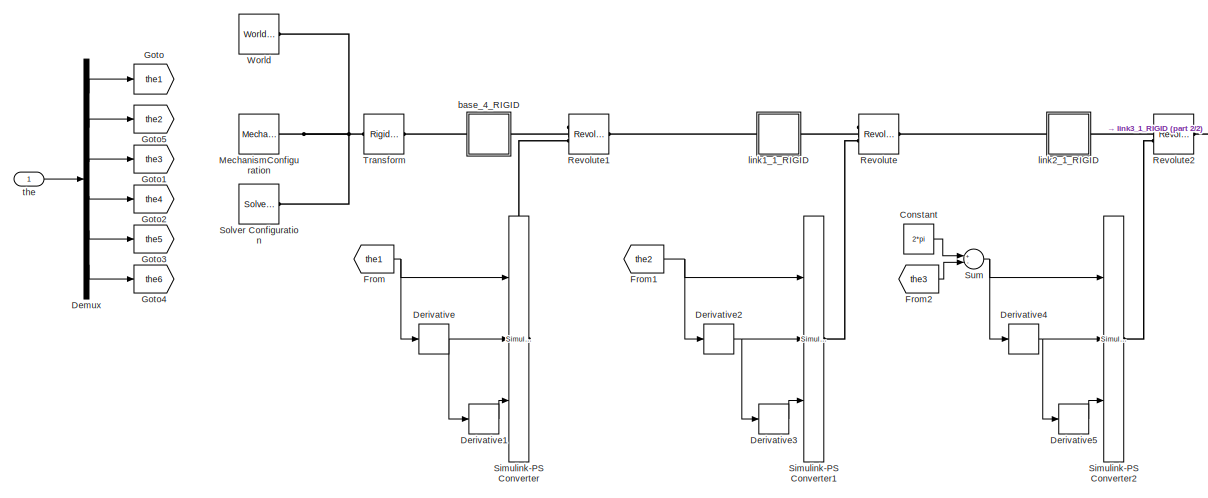
[diagram: Simscape - part 1/2, left side, full height]
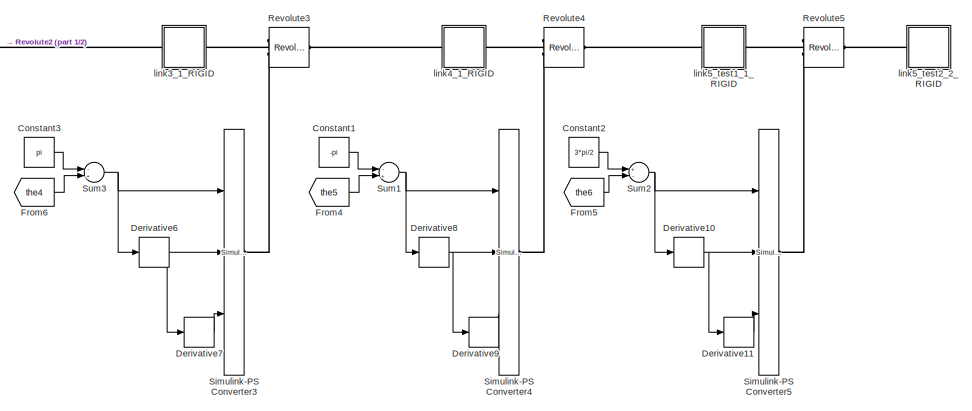
[diagram: Simscape - part 2/2, right side, full height]
BLOCK [SubSystem] Simscape
  Commented = on
  Ports = [1]
  RequestExecContextInheritance = off
BLOCK [Constant] Simscape/Constant
  Value = 2*pi
BLOCK [Constant] Simscape/Constant1
  Value = -pi
BLOCK [Constant] Simscape/Constant2
  Value = 3*pi/2
BLOCK [Constant] Simscape/Constant3
  Value = pi
BLOCK [Demux] Simscape/Demux
  DisplayOption = bar
  Outputs = 6
  Ports = [1, 6]
BLOCK [Derivative] Simscape/Derivative
BLOCK [Derivative] Simscape/Derivative1
BLOCK [Derivative] Simscape/Derivative10
BLOCK [Derivative] Simscape/Derivative11
BLOCK [Derivative] Simscape/Derivative2
BLOCK [Derivative] Simscape/Derivative3
BLOCK [Derivative] Simscape/Derivative4
BLOCK [Derivative] Simscape/Derivative5
BLOCK [Derivative] Simscape/Derivative6
BLOCK [Derivative] Simscape/Derivative7
BLOCK [Derivative] Simscape/Derivative8
BLOCK [Derivative] Simscape/Derivative9
BLOCK [From] Simscape/From
  GotoTag = the1
BLOCK [From] Simscape/From1
  GotoTag = the2
BLOCK [From] Simscape/From2
  GotoTag = the3
BLOCK [From] Simscape/From4
  GotoTag = the5
BLOCK [From] Simscape/From5
  GotoTag = the6
BLOCK [From] Simscape/From6
  GotoTag = the4
BLOCK [Goto] Simscape/Goto
  GotoTag = the1
BLOCK [Goto] Simscape/Goto1
  GotoTag = the3
BLOCK [Goto] Simscape/Goto2
  GotoTag = the4
BLOCK [Goto] Simscape/Goto3
  GotoTag = the5
BLOCK [Goto] Simscape/Goto4
  GotoTag = the6
BLOCK [Goto] Simscape/Goto5
  GotoTag = the2
BLOCK [Reference] Simscape/MechanismConfiguration  REF=sm_lib/Utilities/Mechanism
Configuration
  Ports = [0, 0, 0, 0, 0, 0, 1]
  SourceBlock = sm_lib/Utilities/Mechanism\nConfiguration
  SourceProductBaseCode = MS
  SourceProductName = Simscape Multibody
  SourceType = Mechanism\nConfiguration
BLOCK [Reference] Simscape/Revolute  REF=sm_lib/Joints/Revolute Joint
  Ports = [0, 0, 0, 0, 0, 2, 1]
  SourceBlock = sm_lib/Joints/Revolute Joint
  SourceProductBaseCode = MS
  SourceProductName = Simscape Multibody
  SourceType = Revolute Joint
BLOCK [Reference] Simscape/Revolute1  REF=sm_lib/Joints/Revolute Joint
  Ports = [0, 0, 0, 0, 0, 2, 1]
  SourceBlock = sm_lib/Joints/Revolute Joint
  SourceProductBaseCode = MS
  SourceProductName = Simscape Multibody
  SourceType = Revolute Joint
BLOCK [Reference] Simscape/Revolute2  REF=sm_lib/Joints/Revolute Joint
  Ports = [0, 0, 0, 0, 0, 2, 1]
  SourceBlock = sm_lib/Joints/Revolute Joint
  SourceProductBaseCode = MS
  SourceProductName = Simscape Multibody
  SourceType = Revolute Joint
BLOCK [Reference] Simscape/Revolute3  REF=sm_lib/Joints/Revolute Joint
  Ports = [0, 0, 0, 0, 0, 2, 1]
  SourceBlock = sm_lib/Joints/Revolute Joint
  SourceProductBaseCode = MS
  SourceProductName = Simscape Multibody
  SourceType = Revolute Joint
BLOCK [Reference] Simscape/Revolute4  REF=sm_lib/Joints/Revolute Joint
  Ports = [0, 0, 0, 0, 0, 2, 1]
  SourceBlock = sm_lib/Joints/Revolute Joint
  SourceProductBaseCode = MS
  SourceProductName = Simscape Multibody
  SourceType = Revolute Joint
BLOCK [Reference] Simscape/Revolute5  REF=sm_lib/Joints/Revolute Joint
  Ports = [0, 0, 0, 0, 0, 2, 1]
  SourceBlock = sm_lib/Joints/Revolute Joint
  SourceProductBaseCode = MS
  SourceProductName = Simscape Multibody
  SourceType = Revolute Joint
BLOCK [Reference] Simscape/Simulink-PS Converter  REF=nesl_utility/Simulink-PS
Converter
  Ports = [3, 0, 0, 0, 0, 0, 1]
  SourceBlock = nesl_utility/Simulink-PS\nConverter
  SourceProductBaseCode = SS
  SourceProductName = Simscape
  SourceType = Simulink-PS\nConverter
BLOCK [Reference] Simscape/Simulink-PS Converter1  REF=nesl_utility/Simulink-PS
Converter
  Ports = [3, 0, 0, 0, 0, 0, 1]
  SourceBlock = nesl_utility/Simulink-PS\nConverter
  SourceProductBaseCode = SS
  SourceProductName = Simscape
  SourceType = Simulink-PS\nConverter
BLOCK [Reference] Simscape/Simulink-PS Converter2  REF=nesl_utility/Simulink-PS
Converter
  Ports = [3, 0, 0, 0, 0, 0, 1]
  SourceBlock = nesl_utility/Simulink-PS\nConverter
  SourceProductBaseCode = SS
  SourceProductName = Simscape
  SourceType = Simulink-PS\nConverter
BLOCK [Reference] Simscape/Simulink-PS Converter3  REF=nesl_utility/Simulink-PS
Converter
  Ports = [3, 0, 0, 0, 0, 0, 1]
  SourceBlock = nesl_utility/Simulink-PS\nConverter
  SourceProductBaseCode = SS
  SourceProductName = Simscape
  SourceType = Simulink-PS\nConverter
BLOCK [Reference] Simscape/Simulink-PS Converter4  REF=nesl_utility/Simulink-PS
Converter
  Ports = [3, 0, 0, 0, 0, 0, 1]
  SourceBlock = nesl_utility/Simulink-PS\nConverter
  SourceProductBaseCode = SS
  SourceProductName = Simscape
  SourceType = Simulink-PS\nConverter
BLOCK [Reference] Simscape/Simulink-PS Converter5  REF=nesl_utility/Simulink-PS
Converter
  Ports = [3, 0, 0, 0, 0, 0, 1]
  SourceBlock = nesl_utility/Simulink-PS\nConverter
  SourceProductBaseCode = SS
  SourceProductName = Simscape
  SourceType = Simulink-PS\nConverter
BLOCK [Reference] Simscape/Solver Configuration  REF=nesl_utility/Solver
Configuration
  Ports = [0, 0, 0, 0, 0, 0, 1]
  SourceBlock = nesl_utility/Solver\nConfiguration
  SourceProductBaseCode = SS
  SourceProductName = Simscape
  SourceType = Solver\nConfiguration
BLOCK [Sum] Simscape/Sum
  InputSameDT = off
  Inputs = +-
  OutDataTypeStr = Inherit: Inherit via internal rule
  Ports = [2, 1]
  SaturateOnIntegerOverflow = off
BLOCK [Sum] Simscape/Sum1
  InputSameDT = off
  Inputs = -+
  OutDataTypeStr = Inherit: Inherit via internal rule
  Ports = [2, 1]
  SaturateOnIntegerOverflow = off
BLOCK [Sum] Simscape/Sum2
  InputSameDT = off
  Inputs = +-
  OutDataTypeStr = Inherit: Inherit via internal rule
  Ports = [2, 1]
  SaturateOnIntegerOverflow = off
BLOCK [Sum] Simscape/Sum3
  InputSameDT = off
  Inputs = -+
  OutDataTypeStr = Inherit: Inherit via internal rule
  Ports = [2, 1]
  SaturateOnIntegerOverflow = off
BLOCK [Reference] Simscape/Transform  REF=sm_lib/Frames and
Transforms/Rigid
Transform
  Ports = [0, 0, 0, 0, 0, 1, 1]
  SourceBlock = sm_lib/Frames and\nTransforms/Rigid\nTransform
  SourceProductBaseCode = MS
  SourceProductName = Simscape Multibody
  SourceType = Rigid\nTransform
BLOCK [Reference] Simscape/World  REF=sm_lib/Frames and
Transforms/World Frame
  Ports = [0, 0, 0, 0, 0, 0, 1]
  SourceBlock = sm_lib/Frames and\nTransforms/World Frame
  SourceProductBaseCode = MS
  SourceProductName = Simscape Multibody
  SourceType = World Frame
BLOCK [SubSystem] Simscape/base_4_RIGID
  Ports = [0, 0, 0, 0, 0, 1, 1]
  RequestExecContextInheritance = off
BLOCK [PMIOPort] Simscape/base_4_RIGID/F
  Port = 2
  Side = Right
BLOCK [PMIOPort] Simscape/base_4_RIGID/F1
  Side = Left
BLOCK [Reference] Simscape/base_4_RIGID/ReferenceFrame  REF=sm_lib/Frames and
Transforms/Reference
Frame
  Ports = [0, 0, 0, 0, 0, 0, 1]
  SourceBlock = sm_lib/Frames and\nTransforms/Reference\nFrame
  SourceProductBaseCode = MS
  SourceProductName = Simscape Multibody
  SourceType = Reference\nFrame
BLOCK [Reference] Simscape/base_4_RIGID/Solid  REF=sm_lib/Body Elements/Solid
  Ports = [0, 0, 0, 0, 0, 0, 1]
  SourceBlock = sm_lib/Body Elements/Solid
  SourceProductBaseCode = MS
  SourceProductName = Simscape Multibody
  SourceType = Solid
BLOCK [Reference] Simscape/base_4_RIGID/Transform  REF=sm_lib/Frames and
Transforms/Rigid
Transform
  Ports = [0, 0, 0, 0, 0, 1, 1]
  SourceBlock = sm_lib/Frames and\nTransforms/Rigid\nTransform
  SourceProductBaseCode = MS
  SourceProductName = Simscape Multibody
  SourceType = Rigid\nTransform
BLOCK [SubSystem] Simscape/link1_1_RIGID
  Ports = [0, 0, 0, 0, 0, 1, 1]
  RequestExecContextInheritance = off
BLOCK [PMIOPort] Simscape/link1_1_RIGID/F
  Port = 2
  Side = Right
BLOCK [PMIOPort] Simscape/link1_1_RIGID/F1
  Side = Left
BLOCK [Reference] Simscape/link1_1_RIGID/ReferenceFrame  REF=sm_lib/Frames and
Transforms/Reference
Frame
  Ports = [0, 0, 0, 0, 0, 0, 1]
  SourceBlock = sm_lib/Frames and\nTransforms/Reference\nFrame
  SourceProductBaseCode = MS
  SourceProductName = Simscape Multibody
  SourceType = Reference\nFrame
BLOCK [Reference] Simscape/link1_1_RIGID/Solid  REF=sm_lib/Body Elements/Solid
  Ports = [0, 0, 0, 0, 0, 0, 1]
  SourceBlock = sm_lib/Body Elements/Solid
  SourceProductBaseCode = MS
  SourceProductName = Simscape Multibody
  SourceType = Solid
BLOCK [Reference] Simscape/link1_1_RIGID/Transform  REF=sm_lib/Frames and
Transforms/Rigid
Transform
  Ports = [0, 0, 0, 0, 0, 1, 1]
  SourceBlock = sm_lib/Frames and\nTransforms/Rigid\nTransform
  SourceProductBaseCode = MS
  SourceProductName = Simscape Multibody
  SourceType = Rigid\nTransform
BLOCK [Reference] Simscape/link1_1_RIGID/Transform1  REF=sm_lib/Frames and
Transforms/Rigid
Transform
  Ports = [0, 0, 0, 0, 0, 1, 1]
  SourceBlock = sm_lib/Frames and\nTransforms/Rigid\nTransform
  SourceProductBaseCode = MS
  SourceProductName = Simscape Multibody
  SourceType = Rigid\nTransform
BLOCK [SubSystem] Simscape/link2_1_RIGID
  Ports = [0, 0, 0, 0, 0, 1, 1]
  RequestExecContextInheritance = off
BLOCK [PMIOPort] Simscape/link2_1_RIGID/F
  Side = Left
BLOCK [PMIOPort] Simscape/link2_1_RIGID/F1
  Port = 2
  Side = Right
BLOCK [Reference] Simscape/link2_1_RIGID/ReferenceFrame  REF=sm_lib/Frames and
Transforms/Reference
Frame
  Ports = [0, 0, 0, 0, 0, 0, 1]
  SourceBlock = sm_lib/Frames and\nTransforms/Reference\nFrame
  SourceProductBaseCode = MS
  SourceProductName = Simscape Multibody
  SourceType = Reference\nFrame
BLOCK [Reference] Simscape/link2_1_RIGID/Solid  REF=sm_lib/Body Elements/Solid
  Ports = [0, 0, 0, 0, 0, 0, 1]
  SourceBlock = sm_lib/Body Elements/Solid
  SourceProductBaseCode = MS
  SourceProductName = Simscape Multibody
  SourceType = Solid
BLOCK [Reference] Simscape/link2_1_RIGID/Transform  REF=sm_lib/Frames and
Transforms/Rigid
Transform
  Ports = [0, 0, 0, 0, 0, 1, 1]
  SourceBlock = sm_lib/Frames and\nTransforms/Rigid\nTransform
  SourceProductBaseCode = MS
  SourceProductName = Simscape Multibody
  SourceType = Rigid\nTransform
BLOCK [Reference] Simscape/link2_1_RIGID/Transform1  REF=sm_lib/Frames and
Transforms/Rigid
Transform
  Ports = [0, 0, 0, 0, 0, 1, 1]
  SourceBlock = sm_lib/Frames and\nTransforms/Rigid\nTransform
  SourceProductBaseCode = MS
  SourceProductName = Simscape Multibody
  SourceType = Rigid\nTransform
BLOCK [SubSystem] Simscape/link3_1_RIGID
  Ports = [0, 0, 0, 0, 0, 1, 1]
  RequestExecContextInheritance = off
BLOCK [PMIOPort] Simscape/link3_1_RIGID/F
  Side = Left
BLOCK [PMIOPort] Simscape/link3_1_RIGID/F1
  Port = 2
  Side = Right
BLOCK [Reference] Simscape/link3_1_RIGID/ReferenceFrame  REF=sm_lib/Frames and
Transforms/Reference
Frame
  Ports = [0, 0, 0, 0, 0, 0, 1]
  SourceBlock = sm_lib/Frames and\nTransforms/Reference\nFrame
  SourceProductBaseCode = MS
  SourceProductName = Simscape Multibody
  SourceType = Reference\nFrame
BLOCK [Reference] Simscape/link3_1_RIGID/Solid  REF=sm_lib/Body Elements/Solid
  Ports = [0, 0, 0, 0, 0, 0, 1]
  SourceBlock = sm_lib/Body Elements/Solid
  SourceProductBaseCode = MS
  SourceProductName = Simscape Multibody
  SourceType = Solid
BLOCK [Reference] Simscape/link3_1_RIGID/Transform  REF=sm_lib/Frames and
Transforms/Rigid
Transform
  Ports = [0, 0, 0, 0, 0, 1, 1]
  SourceBlock = sm_lib/Frames and\nTransforms/Rigid\nTransform
  SourceProductBaseCode = MS
  SourceProductName = Simscape Multibody
  SourceType = Rigid\nTransform
BLOCK [Reference] Simscape/link3_1_RIGID/Transform1  REF=sm_lib/Frames and
Transforms/Rigid
Transform
  Ports = [0, 0, 0, 0, 0, 1, 1]
  SourceBlock = sm_lib/Frames and\nTransforms/Rigid\nTransform
  SourceProductBaseCode = MS
  SourceProductName = Simscape Multibody
  SourceType = Rigid\nTransform
BLOCK [SubSystem] Simscape/link4_1_RIGID
  Ports = [0, 0, 0, 0, 0, 1, 1]
  RequestExecContextInheritance = off
BLOCK [PMIOPort] Simscape/link4_1_RIGID/F
  Side = Left
BLOCK [PMIOPort] Simscape/link4_1_RIGID/F1
  Port = 2
  Side = Right
BLOCK [Reference] Simscape/link4_1_RIGID/ReferenceFrame  REF=sm_lib/Frames and
Transforms/Reference
Frame
  Ports = [0, 0, 0, 0, 0, 0, 1]
  SourceBlock = sm_lib/Frames and\nTransforms/Reference\nFrame
  SourceProductBaseCode = MS
  SourceProductName = Simscape Multibody
  SourceType = Reference\nFrame
BLOCK [Reference] Simscape/link4_1_RIGID/Solid  REF=sm_lib/Body Elements/Solid
  Ports = [0, 0, 0, 0, 0, 0, 1]
  SourceBlock = sm_lib/Body Elements/Solid
  SourceProductBaseCode = MS
  SourceProductName = Simscape Multibody
  SourceType = Solid
BLOCK [Reference] Simscape/link4_1_RIGID/Transform  REF=sm_lib/Frames and
Transforms/Rigid
Transform
  Ports = [0, 0, 0, 0, 0, 1, 1]
  SourceBlock = sm_lib/Frames and\nTransforms/Rigid\nTransform
  SourceProductBaseCode = MS
  SourceProductName = Simscape Multibody
  SourceType = Rigid\nTransform
BLOCK [Reference] Simscape/link4_1_RIGID/Transform1  REF=sm_lib/Frames and
Transforms/Rigid
Transform
  Ports = [0, 0, 0, 0, 0, 1, 1]
  SourceBlock = sm_lib/Frames and\nTransforms/Rigid\nTransform
  SourceProductBaseCode = MS
  SourceProductName = Simscape Multibody
  SourceType = Rigid\nTransform
BLOCK [SubSystem] Simscape/link5_test1_1_RIGID
  Ports = [0, 0, 0, 0, 0, 1, 1]
  RequestExecContextInheritance = off
BLOCK [PMIOPort] Simscape/link5_test1_1_RIGID/F
  Side = Left
BLOCK [PMIOPort] Simscape/link5_test1_1_RIGID/F1
  Port = 2
  Side = Right
BLOCK [Reference] Simscape/link5_test1_1_RIGID/ReferenceFrame  REF=sm_lib/Frames and
Transforms/Reference
Frame
  Ports = [0, 0, 0, 0, 0, 0, 1]
  SourceBlock = sm_lib/Frames and\nTransforms/Reference\nFrame
  SourceProductBaseCode = MS
  SourceProductName = Simscape Multibody
  SourceType = Reference\nFrame
BLOCK [Reference] Simscape/link5_test1_1_RIGID/Solid  REF=sm_lib/Body Elements/Solid
  Ports = [0, 0, 0, 0, 0, 0, 1]
  SourceBlock = sm_lib/Body Elements/Solid
  SourceProductBaseCode = MS
  SourceProductName = Simscape Multibody
  SourceType = Solid
BLOCK [Reference] Simscape/link5_test1_1_RIGID/Transform  REF=sm_lib/Frames and
Transforms/Rigid
Transform
  Ports = [0, 0, 0, 0, 0, 1, 1]
  SourceBlock = sm_lib/Frames and\nTransforms/Rigid\nTransform
  SourceProductBaseCode = MS
  SourceProductName = Simscape Multibody
  SourceType = Rigid\nTransform
BLOCK [Reference] Simscape/link5_test1_1_RIGID/Transform1  REF=sm_lib/Frames and
Transforms/Rigid
Transform
  Ports = [0, 0, 0, 0, 0, 1, 1]
  SourceBlock = sm_lib/Frames and\nTransforms/Rigid\nTransform
  SourceProductBaseCode = MS
  SourceProductName = Simscape Multibody
  SourceType = Rigid\nTransform
BLOCK [SubSystem] Simscape/link5_test2_2_RIGID
  Ports = [0, 0, 0, 0, 0, 1]
  RequestExecContextInheritance = off
BLOCK [PMIOPort] Simscape/link5_test2_2_RIGID/F
  Side = Left
BLOCK [Reference] Simscape/link5_test2_2_RIGID/ReferenceFrame  REF=sm_lib/Frames and
Transforms/Reference
Frame
  Ports = [0, 0, 0, 0, 0, 0, 1]
  SourceBlock = sm_lib/Frames and\nTransforms/Reference\nFrame
  SourceProductBaseCode = MS
  SourceProductName = Simscape Multibody
  SourceType = Reference\nFrame
BLOCK [Reference] Simscape/link5_test2_2_RIGID/Solid  REF=sm_lib/Body Elements/Solid
  Ports = [0, 0, 0, 0, 0, 0, 1]
  SourceBlock = sm_lib/Body Elements/Solid
  SourceProductBaseCode = MS
  SourceProductName = Simscape Multibody
  SourceType = Solid
BLOCK [Reference] Simscape/link5_test2_2_RIGID/Transform  REF=sm_lib/Frames and
Transforms/Rigid
Transform
  Ports = [0, 0, 0, 0, 0, 1, 1]
  SourceBlock = sm_lib/Frames and\nTransforms/Rigid\nTransform
  SourceProductBaseCode = MS
  SourceProductName = Simscape Multibody
  SourceType = Rigid\nTransform
BLOCK [Inport] Simscape/the
  IconDisplay = Port number
BLOCK [SubSystem] Sliding Mode Control
  Commented = on
  ErrorFcn = Stateflow.Translate.translate
  PermitHierarchicalResolution = ExplicitOnly
  Ports = [8, 3]
  RequestExecContextInheritance = off
  SFBlockType = MATLAB Function
  TreatAsAtomicUnit = on
BLOCK [Demux] Sliding Mode Control/ Demux 
  Outputs = 1
  Ports = [1, 1]
BLOCK [S-Function] Sliding Mode Control/ SFunction 
  EnableBusSupport = on
  FunctionName = sf_sfun
  PortCounts = [8 4]
  Ports = [8, 4]
  SFcnIsStateOwnerBlock = off
  SFunctionDeploymentMode = off
  Tag = Stateflow S-Function CONTROL_02 8
BLOCK [Terminator] Sliding Mode Control/ Terminator 
BLOCK [Inport] Sliding Mode Control/C
  IconDisplay = Port number
  Port = 7
BLOCK [Inport] Sliding Mode Control/G
  IconDisplay = Port number
  Port = 8
BLOCK [Inport] Sliding Mode Control/M
  IconDisplay = Port number
  Port = 6
BLOCK [Inport] Sliding Mode Control/ddthe_r
  IconDisplay = Port number
  Port = 5
BLOCK [Inport] Sliding Mode Control/dthe
  IconDisplay = Port number
  Port = 2
BLOCK [Inport] Sliding Mode Control/dthe_r
  IconDisplay = Port number
  Port = 4
BLOCK [Outport] Sliding Mode Control/e_d
  IconDisplay = Port number
  Port = 3
BLOCK [Outport] Sliding Mode Control/s
  IconDisplay = Port number
  Port = 2
BLOCK [Inport] Sliding Mode Control/the
  IconDisplay = Port number
BLOCK [Inport] Sliding Mode Control/the_r
  IconDisplay = Port number
  Port = 3
BLOCK [Outport] Sliding Mode Control/to
  IconDisplay = Port number
BLOCK [Step] Step
  After = 20
  SampleTime = 0
  Time = 5
BLOCK [Terminator] Terminator
BLOCK [Terminator] Terminator1
BLOCK [Terminator] Terminator2
BLOCK [ToWorkspace] To Workspace
  FixptAsFi = on
  MaxDataPoints = inf
  Ports = [1]
  SampleTime = -1
  Save2DSignal = 3-D array (concatenate along third dimension)
  VariableName = e
BLOCK [ToWorkspace] To Workspace1
  FixptAsFi = on
  MaxDataPoints = inf
  Ports = [1]
  SampleTime = -1
  Save2DSignal = 3-D array (concatenate along third dimension)
  VariableName = u
BLOCK [Scope] dt1
  Floating = off
  NumInputPorts = 2
  Ports = [2]
  ScopeSpecificationString = Simulink.scopes.TimeScopeBlockCfg('CurrentConfiguration', extmgr.ConfigurationSet(extmgr.Configuration('Core','General UI',true,'FigureColor',[1 1 1]),extmgr.Configuration('Core','Source UI',true),extmgr.Configuration('Sources','WiredSimulink',true,'DataLoggingVariableName','ScopeData5'),extmgr.Configuration('Visuals','Time Domain',true,'SerializedDisplays',{struct('MinYLimReal','-0.01843','MaxYLi...<+2364ch>
BLOCK [Scope] dt2
  Floating = off
  NumInputPorts = 2
  Ports = [2]
  ScopeSpecificationString = Simulink.scopes.TimeScopeBlockCfg('CurrentConfiguration', extmgr.ConfigurationSet(extmgr.Configuration('Core','General UI',true,'FigureColor',[1 1 1]),extmgr.Configuration('Core','Source UI',true),extmgr.Configuration('Sources','WiredSimulink',true,'DataLoggingVariableName','ScopeData6'),extmgr.Configuration('Visuals','Time Domain',true,'SerializedDisplays',{struct('MinYLimReal','-0.01718','MaxYLi...<+2352ch>
BLOCK [Scope] dt3
  Floating = off
  NumInputPorts = 2
  Ports = [2]
  ScopeSpecificationString = Simulink.scopes.TimeScopeBlockCfg('CurrentConfiguration', extmgr.ConfigurationSet(extmgr.Configuration('Core','General UI',true,'FigureColor',[1 1 1]),extmgr.Configuration('Core','Source UI',true),extmgr.Configuration('Sources','WiredSimulink',true,'DataLoggingVariableName','ScopeData20'),extmgr.Configuration('Visuals','Time Domain',true,'SerializedDisplays',{struct('MinYLimReal','-0.0169','MaxYLi...<+2335ch>
BLOCK [Scope] dt4
  Floating = off
  NumInputPorts = 2
  Ports = [2]
  ScopeSpecificationString = Simulink.scopes.TimeScopeBlockCfg('CurrentConfiguration', extmgr.ConfigurationSet(extmgr.Configuration('Core','General UI',true,'FigureColor',[1 1 1]),extmgr.Configuration('Core','Source UI',true),extmgr.Configuration('Sources','WiredSimulink',true,'DataLoggingVariableName','ScopeData2'),extmgr.Configuration('Visuals','Time Domain',true,'SerializedDisplays',{struct('MinYLimReal','-0.01672','MaxYLi...<+2335ch>
BLOCK [Scope] dt5
  Floating = off
  NumInputPorts = 2
  Ports = [2]
  ScopeSpecificationString = Simulink.scopes.TimeScopeBlockCfg('CurrentConfiguration', extmgr.ConfigurationSet(extmgr.Configuration('Core','General UI',true,'FigureColor',[1 1 1]),extmgr.Configuration('Core','Source UI',true),extmgr.Configuration('Sources','WiredSimulink',true,'DataLoggingVariableName','ScopeData3'),extmgr.Configuration('Visuals','Time Domain',true,'SerializedDisplays',{struct('MinYLimReal','-0.01673','MaxYLi...<+2335ch>
BLOCK [Scope] dt6
  Floating = off
  NumInputPorts = 2
  Ports = [2]
  ScopeSpecificationString = Simulink.scopes.TimeScopeBlockCfg('CurrentConfiguration', extmgr.ConfigurationSet(extmgr.Configuration('Core','General UI',true,'FigureColor',[1 1 1]),extmgr.Configuration('Core','Source UI',true),extmgr.Configuration('Sources','WiredSimulink',true,'DataLoggingVariableName','ScopeData4'),extmgr.Configuration('Visuals','Time Domain',true,'SerializedDisplays',{struct('MinYLimReal','-0.02093','MaxYLi...<+2354ch>
BLOCK [Goto] ex
  GotoTag = ex
  TagVisibility = global
BLOCK [Goto] external disturbance
  GotoTag = dt
  TagVisibility = global
BLOCK [Scope] the1
  Floating = off
  NumInputPorts = 2
  Ports = [2]
  ScopeSpecificationString = Simulink.scopes.TimeScopeBlockCfg('CurrentConfiguration', extmgr.ConfigurationSet(extmgr.Configuration('Core','General UI',true,'FigureColor',[1 1 1]),extmgr.Configuration('Core','Source UI',true),extmgr.Configuration('Sources','WiredSimulink',true,'DataLoggingVariableName','test','DataLogging',true,'DataLoggingSaveFormat','StructureWithTime'),extmgr.Configuration('Visuals','Time Domain',true,'Ser...<+2379ch>
BLOCK [Scope] the2
  Floating = off
  NumInputPorts = 2
  Ports = [2]
  ScopeSpecificationString = Simulink.scopes.TimeScopeBlockCfg('CurrentConfiguration', extmgr.ConfigurationSet(extmgr.Configuration('Core','General UI',true,'FigureColor',[1 1 1]),extmgr.Configuration('Core','Source UI',true),extmgr.Configuration('Sources','WiredSimulink',true,'DataLoggingVariableName','ScopeData8'),extmgr.Configuration('Visuals','Time Domain',true,'SerializedDisplays',{struct('MinYLimReal','-0.6545','MaxYLim...<+2369ch>
BLOCK [Scope] the3
  Floating = off
  NumInputPorts = 2
  Ports = [2]
  ScopeSpecificationString = Simulink.scopes.TimeScopeBlockCfg('CurrentConfiguration', extmgr.ConfigurationSet(extmgr.Configuration('Core','General UI',true,'FigureColor',[1 1 1]),extmgr.Configuration('Core','Source UI',true),extmgr.Configuration('Sources','WiredSimulink',true,'DataLoggingVariableName','ScopeData9'),extmgr.Configuration('Visuals','Time Domain',true,'SerializedDisplays',{struct('MinYLimReal','-0.65452','MaxYLi...<+2343ch>
BLOCK [Scope] the4
  Floating = off
  NumInputPorts = 2
  Ports = [2]
  ScopeSpecificationString = Simulink.scopes.TimeScopeBlockCfg('CurrentConfiguration', extmgr.ConfigurationSet(extmgr.Configuration('Core','General UI',true,'FigureColor',[1 1 1]),extmgr.Configuration('Core','Source UI',true),extmgr.Configuration('Sources','WiredSimulink',true,'DataLoggingVariableName','ScopeData10'),extmgr.Configuration('Visuals','Time Domain',true,'SerializedDisplays',{struct('MinYLimReal','-0.6545','MaxYLi...<+2360ch>
BLOCK [Scope] the5
  Floating = off
  NumInputPorts = 2
  Ports = [2]
  ScopeSpecificationString = Simulink.scopes.TimeScopeBlockCfg('CurrentConfiguration', extmgr.ConfigurationSet(extmgr.Configuration('Core','General UI',true,'FigureColor',[1 1 1]),extmgr.Configuration('Core','Source UI',true),extmgr.Configuration('Sources','WiredSimulink',true,'DataLoggingVariableName','ScopeData11'),extmgr.Configuration('Visuals','Time Domain',true,'SerializedDisplays',{struct('MinYLimReal','-0.66685','MaxYL...<+2344ch>
BLOCK [Scope] the6
  Floating = off
  NumInputPorts = 2
  Ports = [2]
  ScopeSpecificationString = Simulink.scopes.TimeScopeBlockCfg('CurrentConfiguration', extmgr.ConfigurationSet(extmgr.Configuration('Core','General UI',true,'FigureColor',[1 1 1]),extmgr.Configuration('Core','Source UI',true),extmgr.Configuration('Sources','WiredSimulink',true,'DataLoggingVariableName','ScopeData12'),extmgr.Configuration('Visuals','Time Domain',true,'SerializedDisplays',{struct('MinYLimReal','-0.87359','MaxYL...<+2344ch>
ANNOTATION (root): Adaptive Sliding Mode Control
ANNOTATION (root): Computed Torque Control
ANNOTATION (root): Extended State Observer
ANNOTATION (root): External Force
ANNOTATION (root): Find MCGJ
ANNOTATION (root): Manipulator
ANNOTATION (root): PID Control
ANNOTATION (root): SCOPE
ANNOTATION (root): Set point
ANNOTATION (root): Simscape Simulation
ANNOTATION (root): Sliding Mode Control
ANNOTATION (root): Sliding Mode Control + ESO
LINE 6DOF Manipulator/Dynamics:1 -> 6DOF Manipulator/Integrator:1
LINE 6DOF Manipulator/Dynamics:2 -> 6DOF Manipulator/dt:1
LINE 6DOF Manipulator/Dynamics:3 -> 6DOF Manipulator/ex:1
LINE 6DOF Manipulator/Fe:1 -> 6DOF Manipulator/Dynamics:3
LINE 6DOF Manipulator/From1:1 -> 6DOF Manipulator/Dynamics:5
LINE 6DOF Manipulator/From2:1 -> 6DOF Manipulator/Dynamics:6
LINE 6DOF Manipulator/From9:1 -> 6DOF Manipulator/Dynamics:7
LINE 6DOF Manipulator/From:1 -> 6DOF Manipulator/Dynamics:4
LINE 6DOF Manipulator/Integrator2:1 -> 6DOF Manipulator/the:1
NET 6DOF Manipulator/Integrator:1 -> 6DOF Manipulator/Dynamics:1, 6DOF Manipulator/Integrator2:1, 6DOF Manipulator/Scope:1, 6DOF Manipulator/dthe:1
LINE 6DOF Manipulator/to:1 -> 6DOF Manipulator/Dynamics:2
LINE 6DOF Manipulator:1 -> Goto8:1
LINE 6DOF Manipulator:2 -> Goto7:1
LINE 6DOF Manipulator:3 -> external disturbance:1
LINE 6DOF Manipulator:4 -> ex:1
LINE Adaptive Sliding Mode Control:1 -> Saturation2:1
LINE Adaptive Sliding Mode Control:2 -> Goto17:1
LINE Adaptive Sliding Mode Control:3 -> Goto21:1
LINE Adaptive Sliding Mode Control:4 -> Integrator:1
LINE Clock1:1 -> MATLAB Function1:1
LINE Clock2:1 -> MATLAB Function2:1
LINE Clock:1 -> MATLAB Function:1
LINE Computed Torque Control:1 -> Saturation:1
LINE Computed Torque Control:2 -> To Workspace:1
LINE Constant1:1 -> Mux:5
LINE Constant2:1 -> Set point:1
LINE Constant3:1 -> Mux:6
LINE Constant4:1 -> Extended State Observer:1
LINE Constant5:1 -> Mux:2
LINE Constant6:1 -> Mux:1
LINE Constant:1 -> Mux:4
LINE Data:1 -> Goto3:1
LINE Data:2 -> Goto4:1
LINE Data:3 -> Goto6:1
LINE Data:4 -> Goto5:1
LINE Extended State Observer:1 -> Goto22:1
LINE Extended State Observer:2 -> Integrator1:1
LINE Extended State Observer:3 -> Goto27:1
LINE From10:1 -> Computed Torque Control:1
LINE From11:1 -> Computed Torque Control:2
LINE From12:1 -> Computed Torque Control:6
LINE From13:1 -> Computed Torque Control:7
LINE From14:1 -> Computed Torque Control:8
LINE From15:1 -> Simscape:1
LINE From16:1 -> Sliding Mode Control:6
LINE From17:1 -> Sliding Mode Control:7
LINE From18:1 -> Sliding Mode Control:8
LINE From19:1 -> Sliding Mode Control:1
LINE From1:1 -> Computed Torque Control:4
LINE From20:1 -> Sliding Mode Control:2
LINE From21:1 -> Sliding Mode Control:3
LINE From22:1 -> Sliding Mode Control:4
LINE From23:1 -> Sliding Mode Control:5
LINE From24:1 -> Adaptive Sliding Mode Control:6
LINE From25:1 -> Adaptive Sliding Mode Control:7
LINE From26:1 -> Adaptive Sliding Mode Control:8
LINE From27:1 -> Adaptive Sliding Mode Control:1
LINE From28:1 -> Adaptive Sliding Mode Control:2
LINE From29:1 -> Adaptive Sliding Mode Control:3
LINE From2:1 -> Computed Torque Control:5
LINE From30:1 -> Adaptive Sliding Mode Control:4
LINE From31:1 -> Adaptive Sliding Mode Control:5
LINE From32:1 -> Gain:1
LINE From33:1 -> Scope1:1
LINE From34:1 -> Scope2:1
LINE From35:1 -> Extended State Observer:4
LINE From36:1 -> Extended State Observer:5
LINE From37:1 -> Extended State Observer:6
LINE From38:1 -> Extended State Observer:2
LINE From39:1 -> Extended State Observer:3
LINE From3:1 -> MCGJ:3
LINE From40:1 -> the1:1
LINE From41:1 -> PID Control:1
LINE From42:1 -> PID Control:2
LINE From43:1 -> the1:2
LINE From44:1 -> the2:1
LINE From45:1 -> the2:2
LINE From46:1 -> the3:1
LINE From47:1 -> the3:2
LINE From48:1 -> the4:1
LINE From49:1 -> the4:2
LINE From4:1 -> MCGJ:4
LINE From50:1 -> the5:1
LINE From51:1 -> the5:2
LINE From52:1 -> the6:1
LINE From53:1 -> the6:2
LINE From54:1 -> Scope7:1
LINE From55:1 -> Scope8:1
LINE From56:1 -> Scope9:1
LINE From57:1 -> Scope10:1
LINE From58:1 -> Scope11:1
LINE From59:1 -> Scope12:1
LINE From5:1 -> MCGJ:5
LINE From60:1 -> Scope13:1
LINE From61:1 -> dt1:1
LINE From62:1 -> dt1:2
LINE From63:1 -> dt2:1
LINE From64:1 -> dt2:2
LINE From65:1 -> dt3:1
LINE From66:1 -> dt3:2
LINE From67:1 -> dt4:1
LINE From68:1 -> dt4:2
LINE From69:1 -> dt5:1
LINE From6:1 -> MCGJ:6
LINE From70:1 -> dt5:2
LINE From71:1 -> dt6:1
LINE From72:1 -> dt6:2
LINE From73:1 -> Scope3:1
LINE From74:1 -> Scope4:1
LINE From75:1 -> Scope5:1
LINE From76:1 -> Scope6:1
LINE From77:1 -> SMC ESO:6
LINE From78:1 -> SMC ESO:7
LINE From79:1 -> SMC ESO:8
LINE From7:1 -> MCGJ:1
LINE From80:1 -> SMC ESO:1
LINE From81:1 -> SMC ESO:2
LINE From82:1 -> SMC ESO:3
LINE From83:1 -> SMC ESO:4
LINE From84:1 -> SMC ESO:5
LINE From85:1 -> Scope14:1
LINE From8:1 -> MCGJ:2
LINE From9:1 -> Gain1:1
LINE From:1 -> Computed Torque Control:3
LINE Gain1:1 -> 6DOF Manipulator:1
LINE Gain:1 -> 6DOF Manipulator:2
NET Integrator1:1 -> Extended State Observer:7, Goto23:1
LINE Integrator:1 -> Adaptive Sliding Mode Control:9
LINE MATLAB Function1:1 -> Terminator1:1
LINE MATLAB Function2:1 -> Terminator:1
LINE MATLAB Function:1 -> Terminator2:1
LINE MCGJ:1 -> Goto:1
LINE MCGJ:2 -> Goto1:1
LINE MCGJ:3 -> Goto2:1
LINE MCGJ:4 -> Goto9:1
LINE Mux:1 -> Goto16:1
LINE PID Control/Derivative:1 -> PID Control/PID:3
LINE PID Control/Integrator:1 -> PID Control/PID:2
LINE PID Control/PID:1 -> PID Control/to:1
NET PID Control/Sum:1 -> PID Control/Derivative:1, PID Control/Integrator:1, PID Control/PID:1
LINE PID Control/the:1 -> PID Control/Sum:1
LINE PID Control/the_r:1 -> PID Control/Sum:2
LINE PID Control:1 -> Saturation3:1
LINE SCOPE/Demux1:1 -> SCOPE/Goto6:1
LINE SCOPE/Demux1:2 -> SCOPE/Goto7:1
LINE SCOPE/Demux1:3 -> SCOPE/Goto8:1
LINE SCOPE/Demux1:4 -> SCOPE/Goto9:1
LINE SCOPE/Demux1:5 -> SCOPE/Goto10:1
LINE SCOPE/Demux1:6 -> SCOPE/Goto11:1
LINE SCOPE/Demux2:1 -> SCOPE/Goto14:1
LINE SCOPE/Demux2:2 -> SCOPE/Goto15:1
LINE SCOPE/Demux2:3 -> SCOPE/Goto16:1
LINE SCOPE/Demux2:4 -> SCOPE/Goto17:1
LINE SCOPE/Demux2:5 -> SCOPE/Goto12:1
LINE SCOPE/Demux2:6 -> SCOPE/Goto13:1
LINE SCOPE/Demux3:1 -> SCOPE/Goto32:1
LINE SCOPE/Demux3:2 -> SCOPE/Goto33:1
LINE SCOPE/Demux3:3 -> SCOPE/Goto34:1
LINE SCOPE/Demux3:4 -> SCOPE/Goto35:1
LINE SCOPE/Demux3:5 -> SCOPE/Goto30:1
LINE SCOPE/Demux3:6 -> SCOPE/Goto31:1
LINE SCOPE/Demux4:1 -> SCOPE/Goto38:1
LINE SCOPE/Demux4:2 -> SCOPE/Goto39:1
LINE SCOPE/Demux4:3 -> SCOPE/Goto40:1
LINE SCOPE/Demux4:4 -> SCOPE/Goto41:1
LINE SCOPE/Demux4:5 -> SCOPE/Goto36:1
LINE SCOPE/Demux4:6 -> SCOPE/Goto37:1
LINE SCOPE/Demux:1 -> SCOPE/Goto:1
LINE SCOPE/Demux:2 -> SCOPE/Goto1:1
LINE SCOPE/Demux:3 -> SCOPE/Goto2:1
LINE SCOPE/Demux:4 -> SCOPE/Goto3:1
LINE SCOPE/Demux:5 -> SCOPE/Goto4:1
LINE SCOPE/Demux:6 -> SCOPE/Goto5:1
NET SCOPE/From10:1 -> SCOPE/Mux4:2, SCOPE/Sum4:2
NET SCOPE/From11:1 -> SCOPE/Mux4:1, SCOPE/Sum4:1
NET SCOPE/From12:1 -> SCOPE/Mux5:2, SCOPE/Sum5:2
NET SCOPE/From13:1 -> SCOPE/Mux5:1, SCOPE/Sum5:1
LINE SCOPE/From14:1 -> SCOPE/Demux3:1
LINE SCOPE/From15:1 -> SCOPE/Demux4:1
NET SCOPE/From16:1 -> SCOPE/Mux6:1, SCOPE/Sum6:1
NET SCOPE/From17:1 -> SCOPE/Mux6:2, SCOPE/Sum6:2
NET SCOPE/From18:1 -> SCOPE/Mux7:1, SCOPE/Sum7:1
NET SCOPE/From19:1 -> SCOPE/Mux7:2, SCOPE/Sum7:2
LINE SCOPE/From1:1 -> SCOPE/Demux1:1
NET SCOPE/From20:1 -> SCOPE/Mux8:1, SCOPE/Sum8:1
NET SCOPE/From21:1 -> SCOPE/Mux8:2, SCOPE/Sum8:2
NET SCOPE/From22:1 -> SCOPE/Mux9:1, SCOPE/Sum9:1
NET SCOPE/From23:1 -> SCOPE/Mux9:2, SCOPE/Sum9:2
NET SCOPE/From24:1 -> SCOPE/Mux10:1, SCOPE/Sum10:1
NET SCOPE/From25:1 -> SCOPE/Mux10:2, SCOPE/Sum10:2
NET SCOPE/From26:1 -> SCOPE/Mux11:1, SCOPE/Sum11:1
NET SCOPE/From27:1 -> SCOPE/Mux11:2, SCOPE/Sum11:2
LINE SCOPE/From28:1 -> SCOPE/Terminator1:1
LINE SCOPE/From2:1 -> SCOPE/Demux2:1
NET SCOPE/From3:1 -> SCOPE/Mux:1, SCOPE/Sum:1
LINE SCOPE/From40:1 -> SCOPE/Demux:1
NET SCOPE/From4:1 -> SCOPE/Mux1:2, SCOPE/Sum1:2
NET SCOPE/From5:1 -> SCOPE/Mux1:1, SCOPE/Sum1:1
NET SCOPE/From6:1 -> SCOPE/Mux2:2, SCOPE/Sum2:2
NET SCOPE/From7:1 -> SCOPE/Mux2:1, SCOPE/Sum2:1
NET SCOPE/From8:1 -> SCOPE/Mux3:2, SCOPE/Sum3:2
NET SCOPE/From9:1 -> SCOPE/Mux3:1, SCOPE/Sum3:1
NET SCOPE/From:1 -> SCOPE/Mux:2, SCOPE/Sum:2
LINE SCOPE/Mux10:1 -> SCOPE/Goto50:1
LINE SCOPE/Mux11:1 -> SCOPE/Goto52:1
LINE SCOPE/Mux1:1 -> SCOPE/Goto20:1
LINE SCOPE/Mux2:1 -> SCOPE/Goto22:1
LINE SCOPE/Mux3:1 -> SCOPE/Goto24:1
LINE SCOPE/Mux4:1 -> SCOPE/Goto26:1
LINE SCOPE/Mux5:1 -> SCOPE/Goto28:1
LINE SCOPE/Mux6:1 -> SCOPE/Goto42:1
LINE SCOPE/Mux7:1 -> SCOPE/Goto44:1
LINE SCOPE/Mux8:1 -> SCOPE/Goto46:1
LINE SCOPE/Mux9:1 -> SCOPE/Goto48:1
LINE SCOPE/Mux:1 -> SCOPE/Goto18:1
LINE SCOPE/Sum10:1 -> SCOPE/Goto51:1
LINE SCOPE/Sum11:1 -> SCOPE/Goto53:1
LINE SCOPE/Sum1:1 -> SCOPE/Goto21:1
LINE SCOPE/Sum2:1 -> SCOPE/Goto23:1
LINE SCOPE/Sum3:1 -> SCOPE/Goto25:1
LINE SCOPE/Sum4:1 -> SCOPE/Goto27:1
LINE SCOPE/Sum5:1 -> SCOPE/Goto29:1
LINE SCOPE/Sum6:1 -> SCOPE/Goto43:1
LINE SCOPE/Sum7:1 -> SCOPE/Goto45:1
LINE SCOPE/Sum8:1 -> SCOPE/Goto47:1
LINE SCOPE/Sum9:1 -> SCOPE/Goto49:1
LINE SCOPE/Sum:1 -> SCOPE/Goto19:1
LINE SMC ESO:1 -> Saturation4:1
LINE SMC ESO:2 -> Goto25:1
LINE SMC ESO:3 -> Goto26:1
LINE Saturation1:1 -> Goto14:1
LINE Saturation2:1 -> Goto15:1
LINE Saturation3:1 -> Goto20:1
LINE Saturation4:1 -> Goto24:1
NET Saturation:1 -> Goto13:1, To Workspace1:1
LINE Set point/Derivative1:1 -> Set point/dde_r:1
NET Set point/Derivative:1 -> Set point/Derivative1:1, Set point/de_r:1
NET Set point/Multiport Switch:1 -> Set point/Derivative:1, Set point/e_r:1
LINE Set point/Mux1:1 -> Set point/Multiport Switch:3
LINE Set point/Mux:1 -> Set point/Multiport Switch:2
LINE Set point/Sine Wave1:1 -> Set point/Mux:2
LINE Set point/Sine Wave2:1 -> Set point/Mux:3
LINE Set point/Sine Wave3:1 -> Set point/Mux:4
LINE Set point/Sine Wave4:1 -> Set point/Mux:5
LINE Set point/Sine Wave5:1 -> Set point/Mux:6
LINE Set point/Sine Wave:1 -> Set point/Mux:1
LINE Set point/Step1:1 -> Set point/Mux1:2
LINE Set point/Step2:1 -> Set point/Mux1:3
LINE Set point/Step3:1 -> Set point/Mux1:4
LINE Set point/Step4:1 -> Set point/Mux1:5
LINE Set point/Step5:1 -> Set point/Mux1:6
LINE Set point/Step:1 -> Set point/Mux1:1
LINE Set point/mode:1 -> Set point/Multiport Switch:1
LINE Set point:1 -> Goto10:1
LINE Set point:2 -> Goto11:1
LINE Set point:3 -> Goto12:1
LINE Simscape/Constant1:1 -> Simscape/Sum1:1
LINE Simscape/Constant2:1 -> Simscape/Sum2:1
LINE Simscape/Constant3:1 -> Simscape/Sum3:1
LINE Simscape/Constant:1 -> Simscape/Sum:1
LINE Simscape/Demux:1 -> Simscape/Goto:1
LINE Simscape/Demux:2 -> Simscape/Goto5:1
LINE Simscape/Demux:3 -> Simscape/Goto1:1
LINE Simscape/Demux:4 -> Simscape/Goto2:1
LINE Simscape/Demux:5 -> Simscape/Goto3:1
LINE Simscape/Demux:6 -> Simscape/Goto4:1
NET Simscape/Derivative10:1 -> Simscape/Derivative11:1, Simscape/Simulink-PS Converter5:2
LINE Simscape/Derivative11:1 -> Simscape/Simulink-PS Converter5:3
LINE Simscape/Derivative1:1 -> Simscape/Simulink-PS Converter:3
NET Simscape/Derivative2:1 -> Simscape/Derivative3:1, Simscape/Simulink-PS Converter1:2
LINE Simscape/Derivative3:1 -> Simscape/Simulink-PS Converter1:3
NET Simscape/Derivative4:1 -> Simscape/Derivative5:1, Simscape/Simulink-PS Converter2:2
LINE Simscape/Derivative5:1 -> Simscape/Simulink-PS Converter2:3
NET Simscape/Derivative6:1 -> Simscape/Derivative7:1, Simscape/Simulink-PS Converter3:2
LINE Simscape/Derivative7:1 -> Simscape/Simulink-PS Converter3:3
NET Simscape/Derivative8:1 -> Simscape/Derivative9:1, Simscape/Simulink-PS Converter4:2
LINE Simscape/Derivative9:1 -> Simscape/Simulink-PS Converter4:3
NET Simscape/Derivative:1 -> Simscape/Derivative1:1, Simscape/Simulink-PS Converter:2
NET Simscape/From1:1 -> Simscape/Derivative2:1, Simscape/Simulink-PS Converter1:1
LINE Simscape/From2:1 -> Simscape/Sum:2
LINE Simscape/From4:1 -> Simscape/Sum1:2
LINE Simscape/From5:1 -> Simscape/Sum2:2
LINE Simscape/From6:1 -> Simscape/Sum3:2
NET Simscape/From:1 -> Simscape/Derivative:1, Simscape/Simulink-PS Converter:1
NET Simscape/Sum1:1 -> Simscape/Derivative8:1, Simscape/Simulink-PS Converter4:1
NET Simscape/Sum2:1 -> Simscape/Derivative10:1, Simscape/Simulink-PS Converter5:1
NET Simscape/Sum3:1 -> Simscape/Derivative6:1, Simscape/Simulink-PS Converter3:1
NET Simscape/Sum:1 -> Simscape/Derivative4:1, Simscape/Simulink-PS Converter2:1
LINE Simscape/the:1 -> Simscape/Demux:1
LINE Sliding Mode Control:1 -> Saturation1:1
LINE Sliding Mode Control:2 -> Goto18:1
LINE Sliding Mode Control:3 -> Goto19:1
LINE Step:1 -> Mux:3
PNET net1: Simscape/MechanismConfiguration:RConn1 -- Simscape/Solver Configuration:RConn1 -- Simscape/Transform:LConn1 -- Simscape/World:RConn1
PLINE Simscape/Revolute1:LConn1 -- Simscape/base_4_RIGID:RConn1
PLINE Simscape/Revolute1:LConn2 -- Simscape/Simulink-PS Converter:RConn1
PLINE Simscape/Revolute1:RConn1 -- Simscape/link1_1_RIGID:LConn1
PLINE Simscape/Revolute2:LConn1 -- Simscape/link2_1_RIGID:RConn1
PLINE Simscape/Revolute2:LConn2 -- Simscape/Simulink-PS Converter2:RConn1
PLINE Simscape/Revolute2:RConn1 -- Simscape/link3_1_RIGID:LConn1
PLINE Simscape/Revolute3:LConn1 -- Simscape/link3_1_RIGID:RConn1
PLINE Simscape/Revolute3:LConn2 -- Simscape/Simulink-PS Converter3:RConn1
PLINE Simscape/Revolute3:RConn1 -- Simscape/link4_1_RIGID:LConn1
PLINE Simscape/Revolute4:LConn1 -- Simscape/link4_1_RIGID:RConn1
PLINE Simscape/Revolute4:LConn2 -- Simscape/Simulink-PS Converter4:RConn1
PLINE Simscape/Revolute4:RConn1 -- Simscape/link5_test1_1_RIGID:LConn1
PLINE Simscape/Revolute5:LConn1 -- Simscape/link5_test1_1_RIGID:RConn1
PLINE Simscape/Revolute5:LConn2 -- Simscape/Simulink-PS Converter5:RConn1
PLINE Simscape/Revolute5:RConn1 -- Simscape/link5_test2_2_RIGID:LConn1
PLINE Simscape/Revolute:LConn1 -- Simscape/link1_1_RIGID:RConn1
PLINE Simscape/Revolute:LConn2 -- Simscape/Simulink-PS Converter1:RConn1
PLINE Simscape/Revolute:RConn1 -- Simscape/link2_1_RIGID:LConn1
PLINE Simscape/Transform:RConn1 -- Simscape/base_4_RIGID:LConn1
PNET net2: Simscape/base_4_RIGID/F1:RConn1 -- Simscape/base_4_RIGID/ReferenceFrame:RConn1 -- Simscape/base_4_RIGID/Solid:RConn1 -- Simscape/base_4_RIGID/Transform:LConn1
PLINE Simscape/base_4_RIGID/F:RConn1 -- Simscape/base_4_RIGID/Transform:RConn1
PLINE Simscape/link1_1_RIGID/F1:RConn1 -- Simscape/link1_1_RIGID/Transform1:RConn1
PLINE Simscape/link1_1_RIGID/F:RConn1 -- Simscape/link1_1_RIGID/Transform:RConn1
PNET net3: Simscape/link1_1_RIGID/ReferenceFrame:RConn1 -- Simscape/link1_1_RIGID/Solid:RConn1 -- Simscape/link1_1_RIGID/Transform1:LConn1 -- Simscape/link1_1_RIGID/Transform:LConn1
PLINE Simscape/link2_1_RIGID/F1:RConn1 -- Simscape/link2_1_RIGID/Transform1:RConn1
PLINE Simscape/link2_1_RIGID/F:RConn1 -- Simscape/link2_1_RIGID/Transform:RConn1
PNET net4: Simscape/link2_1_RIGID/ReferenceFrame:RConn1 -- Simscape/link2_1_RIGID/Solid:RConn1 -- Simscape/link2_1_RIGID/Transform1:LConn1 -- Simscape/link2_1_RIGID/Transform:LConn1
PLINE Simscape/link3_1_RIGID/F1:RConn1 -- Simscape/link3_1_RIGID/Transform1:RConn1
PLINE Simscape/link3_1_RIGID/F:RConn1 -- Simscape/link3_1_RIGID/Transform:RConn1
PNET net5: Simscape/link3_1_RIGID/ReferenceFrame:RConn1 -- Simscape/link3_1_RIGID/Solid:RConn1 -- Simscape/link3_1_RIGID/Transform1:LConn1 -- Simscape/link3_1_RIGID/Transform:LConn1
PLINE Simscape/link4_1_RIGID/F1:RConn1 -- Simscape/link4_1_RIGID/Transform1:RConn1
PLINE Simscape/link4_1_RIGID/F:RConn1 -- Simscape/link4_1_RIGID/Transform:RConn1
PNET net6: Simscape/link4_1_RIGID/ReferenceFrame:RConn1 -- Simscape/link4_1_RIGID/Solid:RConn1 -- Simscape/link4_1_RIGID/Transform1:LConn1 -- Simscape/link4_1_RIGID/Transform:LConn1
PLINE Simscape/link5_test1_1_RIGID/F1:RConn1 -- Simscape/link5_test1_1_RIGID/Transform1:RConn1
PLINE Simscape/link5_test1_1_RIGID/F:RConn1 -- Simscape/link5_test1_1_RIGID/Transform:RConn1
PNET net7: Simscape/link5_test1_1_RIGID/ReferenceFrame:RConn1 -- Simscape/link5_test1_1_RIGID/Solid:RConn1 -- Simscape/link5_test1_1_RIGID/Transform1:LConn1 -- Simscape/link5_test1_1_RIGID/Transform:LConn1
PLINE Simscape/link5_test2_2_RIGID/F:RConn1 -- Simscape/link5_test2_2_RIGID/Transform:RConn1
PNET net8: Simscape/link5_test2_2_RIGID/ReferenceFrame:RConn1 -- Simscape/link5_test2_2_RIGID/Solid:RConn1 -- Simscape/link5_test2_2_RIGID/Transform:LConn1
note: NET lines group one-source signal fan-out (src -> all destinations, sorted); 1:1 wires keep LINE; PNET lines group multi-terminal physical nets as a canonical sorted terminal list (undirected conserving connections); 2-terminal nets keep the pairwise PLINE form
CHART 6DOF Manipulator/Dynamics states=1 transitions=1
  STATE_LABEL 'eML_blk_kernel()'
  STATE_LABEL "SCRIPT:\nfunction [ddthe,dt,ex] = DYN_6DOF(de,t,Fe,M,C,G,J)\n%%\n% Fv: viscous friction 2\n% Fc: Coulomb friction 2\n% Fe: External Force\nFc = 0.01*diag([1,1,1,1,1,1]);\n% Fv = diag([5,5,5,0.5,0.1,0.05]);\n% Fv = 0.14*diag([2,4,4,1,1,1]);\nFv = 0.01*diag([1,1,1,1,1,1]);\n% dt: Model error + External disturbance\ndt = Fc*sign(de) + Fv*de + J.'*Fe;\nex = J.'*Fe;\n%%\nddthe = inv(M)*(t - C*de - G - dt);"
CHART MCGJ states=1 transitions=1
  STATE_LABEL 'eML_blk_kernel()'
  STATE_LABEL 'SCRIPT:\nfunction [M,C,G,J] = MCGJ_6DOF(the,dthe,m,L,Pic,I)\ne1 = the(1); e2 = the(2); e3 = the(3);\ne4 = the(4); e5 = the(5); e6 = the(6);\nde1 = dthe(1); de2 = dthe(2); de3 = dthe(3);\nde4 = dthe(4); de5 = dthe(5); de6 = dthe(6);\nx1 = Pic(1,1); y1 = Pic(1,2); z1 = Pic(1,3);\nx2 = Pic(2,1); y2 = Pic(2,2); z2 = Pic(2,3);\nx3 = Pic(3,1); y3 = Pic(3,2); z3 = Pic(3,3);\nx4 = Pic(4,1); y4 = Pic(4,2); z4 = Pic...<+3608ch>'
CHART Data states=1 transitions=1
  STATE_LABEL 'eML_blk_kernel()'
  STATE_LABEL 'SCRIPT:\nfunction [m,L,Pic,I] = DATA_6DOF()\na1=0.075; a2=0.270; a3=0.090; d1=0.335; d4=0.295; d7=0.08;\nm1 = 5.6511; m2 = 4.6061; m3 = 4.2963; m4 = 1.9151; m5 = 0.3399; m6 = 0.0714;\nm = [m1 m2 m3 m4 m5 m6];\nL = [a1 a2 a3 d1 d4 d7];\n% Pic = zeros(6,3);\n% I = zeros(6,6);\nPic = [0.0373,  -0.0076,   0.1064;\n       0.1127,   0.0065,   0.0648;\n       0.0447,   0.0125,  -0.0554;\n       0.0006,   0.0052,   ...<+1086ch>'
CHART Computed Torque Control states=1 transitions=1
  STATE_LABEL 'eML_blk_kernel()'
  STATE_LABEL 'SCRIPT:\nfunction [to,E] = CTC(the,dthe,the_r,dthe_r,ddthe_r,M,C,G)\n%% Control:\n% Controler parameters\n% GA\n% k1 65.7400   52.0100   59.6700   97.0800    3.1400   41.8200\n% k2 98.7800   88.4900   62.1600   67.4800   71.0500   35.0600\n% k11 = k1(1); k12 = k1(2); k13 = k1(3); k14 = k1(4); k15 = k1(5); k16 = k1(6);\n% k21 = k2(1); k22 = k2(2); k23 = k2(3); k24 = k2(4); k25 = k2(5); k26 = k2(6);\n% Kp = ...<+385ch>'
CHART MATLAB Function states=1 transitions=1
  STATE_LABEL 'eML_blk_kernel()'
  STATE_LABEL 'SCRIPT:\nfunction y = fcn(u)\n\nif u >=10 && u<10.1\n    y = 100;\nelseif u >=13 && u<13.1\n    y = -50;\nelse\n    y = 0;\nend'
CHART MATLAB Function1 states=1 transitions=1
  STATE_LABEL 'eML_blk_kernel()'
  STATE_LABEL 'SCRIPT:\nfunction y = fcn(u)\n\nif u >=20 && u<20.1\n    y = 250;\nelseif u >=23 && u<23.1\n    y = -250;\nelse\n    y = 0;\nend'
CHART MATLAB Function2 states=1 transitions=1
  STATE_LABEL 'eML_blk_kernel()'
  STATE_LABEL 'SCRIPT:\nfunction y = fcn(u)\n\nif u >= 3 && u < 3.1\n    y = 300;\nelseif u >= 6 && u < 6.1\n    y = -300;\nelse\n    y = 0;\nend'
CHART Sliding Mode Control states=1 transitions=1
  STATE_LABEL 'eML_blk_kernel()'
  STATE_LABEL 'SCRIPT:\nfunction [to,s,e_d] = SMC(the,dthe,the_r,dthe_r,ddthe_r,M,C,G)\n%% Control:\n% Controler parameters\n% % with noise\n\n% without noise\nlamda = 50*diag([1,1,1,1,1,1]);\nK     = 0.055*diag([1,1,1,1,1,1]);\neta   = 0.1*diag([1,1,1,1,1,1]);\n\n% Designed sliding mode control\ne = the - the_r;\ne_d = dthe - dthe_r;\ns = lamda*e + e_d;\nto = -K*s + C*(dthe_r - lamda*e) + G + M*(ddthe_r - lamda*e_d) - eta*sig...<+102ch>'
CHART Adaptive Sliding Mode Control states=1 transitions=1
  STATE_LABEL 'eML_blk_kernel()'
  STATE_LABEL 'SCRIPT:\nfunction [to,s,e_d,etad_hat] = ASMC(the,dthe,the_r,dthe_r,ddthe_r,M,C,G,eta_hat)\n%% Control:\n% Controler parameters\n% % with noise\n\n% without noise\nlamda = diag([20,20,20,20,20,20]);\nK = diag([5,5,5,5,5,5]);\nk1 = 10^-2*[3;3;2;0.5;0.2;0.1];\nk2 = 10^-4*[500;300;200;100;100;100];\n\n% Designed sliding mode control\ne = the - the_r;\ne_d = dthe - dthe_r;\ns = e_d + lamda*e;\n\ne_2 = 0.001;\ne_1 = 10*e...<+964ch>'
CHART PID Control/PID states=1 transitions=1
  STATE_LABEL 'eML_blk_kernel()'
  STATE_LABEL 'SCRIPT:\nfunction to = fcn(e,ei,ed)\nKp = 20*diag([1,1,1,1,1,1]);\nKi = 0*diag([1,1,1,1,1,1]);\nKd = 0.01*diag([1,1,1,1,1,1]);\nto = Kp*e + Ki*ei + Kd*ed;'
CHART Extended State Observer states=1 transitions=1
  STATE_LABEL 'eML_blk_kernel()'
  STATE_LABEL 'SCRIPT:\nfunction [dt_ESO,dx_hat,x3_hat] = ESO(k0,to,x1,M,C,G,x_hat)\nx1_hat = [x_hat(1);   x_hat(2);  x_hat(3);  x_hat(4);  x_hat(5);  x_hat(6)];\nx2_hat = [x_hat(7);   x_hat(8);  x_hat(9); x_hat(10); x_hat(11); x_hat(12)];\nx3_hat = [x_hat(13); x_hat(14); x_hat(15); x_hat(16); x_hat(17); x_hat(18)];\nAn = [zeros(6)   eye(6) zeros(6);\n      zeros(6) zeros(6)   eye(6);\n      zeros(6) zeros(6) zeros(6)]...<+420ch>'
CHART SMC ESO states=1 transitions=1
  STATE_LABEL 'eML_blk_kernel()'
  STATE_LABEL 'SCRIPT:\nfunction [to,s,e_d] = SMC(the,dthe,the_r,dthe_r,ddthe_r,M,C,G)\n%% Control:\n% Controler parameters\n% % with noise\n\n% without noise\nlamda = 50*diag([1,1,1,1,1,1]);\nK     = 0.055*diag([1,1,1,1,1,1]);\neta   = 0.1*diag([1,1,1,1,1,1]);\n\n% Designed sliding mode control\ne = the - the_r;\ne_d = dthe - dthe_r;\ns = lamda*e + e_d;\nto = -K*s + C*(dthe_r - lamda*e) + G + M*(ddthe_r - lamda*e_d) - eta*sig...<+102ch>'
